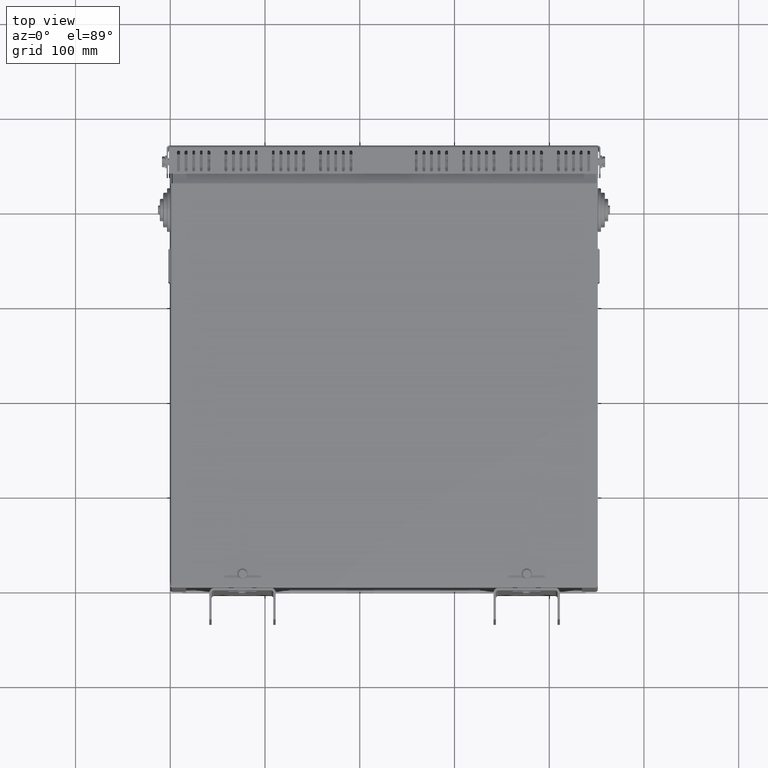
[diagram: clean part render]
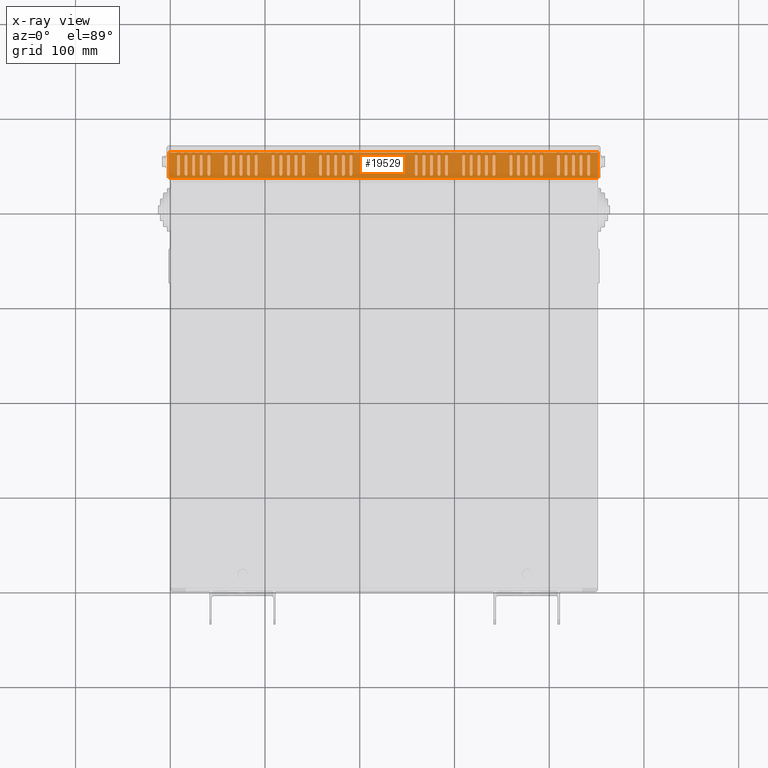
[diagram: x-ray — body ghosted, one internal face saturated and labeled with its STEP entity id]
A machine part, top view, then the same camera in x-ray: the body is ghosted and one INTERNAL B-rep face — a face not visible from any outside direction — is saturated and labeled: STEP entity #19529.
In plain terms, the highlighted planar face has unit normal (0, -0, -1).
Its self-contained STEP definition (entity closure, byte-faithful):
#1108=PLANE('',#21120);
#1771=LINE('',#28733,#3489);
#1780=LINE('',#28762,#3498);
#1787=LINE('',#28781,#3505);
#1796=LINE('',#28810,#3514);
#1806=LINE('',#28843,#3524);
#1813=LINE('',#28863,#3531);
#1819=LINE('',#28877,#3537);
#1828=LINE('',#28906,#3546);
#1835=LINE('',#28925,#3553);
#1844=LINE('',#28954,#3562);
#1851=LINE('',#28973,#3569);
#1860=LINE('',#29002,#3578);
#1867=LINE('',#29021,#3585);
#1876=LINE('',#29050,#3594);
#1883=LINE('',#29069,#3601);
#1892=LINE('',#29098,#3610);
#1899=LINE('',#29117,#3617);
#1908=LINE('',#29146,#3626);
#1915=LINE('',#29165,#3633);
#1924=LINE('',#29194,#3642);
#1931=LINE('',#29213,#3649);
#1940=LINE('',#29242,#3658);
#1947=LINE('',#29261,#3665);
#1956=LINE('',#29290,#3674);
#1963=LINE('',#29309,#3681);
#1972=LINE('',#29338,#3690);
#1979=LINE('',#29357,#3697);
#1988=LINE('',#29386,#3706);
#1995=LINE('',#29405,#3713);
#2004=LINE('',#29434,#3722);
#2011=LINE('',#29453,#3729);
#2020=LINE('',#29482,#3738);
#2027=LINE('',#29501,#3745);
#2036=LINE('',#29530,#3754);
#2043=LINE('',#29549,#3761);
#2052=LINE('',#29578,#3770);
#2062=LINE('',#29611,#3780);
#2069=LINE('',#29631,#3787);
#2078=LINE('',#29659,#3796);
#2085=LINE('',#29679,#3803);
#2091=LINE('',#29693,#3809);
#2100=LINE('',#29722,#3818);
#2107=LINE('',#29741,#3825);
#2116=LINE('',#29770,#3834);
#2123=LINE('',#29789,#3841);
#2132=LINE('',#29818,#3850);
#2142=LINE('',#29851,#3860);
#2149=LINE('',#29871,#3867);
#2158=LINE('',#29899,#3876);
#2165=LINE('',#29919,#3883);
#2174=LINE('',#29947,#3892);
#2181=LINE('',#29967,#3899);
#2187=LINE('',#29981,#3905);
#2196=LINE('',#30010,#3914);
#2203=LINE('',#30029,#3921);
#2212=LINE('',#30058,#3930);
#2219=LINE('',#30077,#3937);
#2228=LINE('',#30106,#3946);
#2235=LINE('',#30125,#3953);
#2244=LINE('',#30154,#3962);
#2251=LINE('',#30173,#3969);
#2260=LINE('',#30202,#3978);
#2267=LINE('',#30221,#3985);
#2276=LINE('',#30250,#3994);
#2283=LINE('',#30269,#4001);
#2292=LINE('',#30298,#4010);
#2299=LINE('',#30317,#4017);
#2308=LINE('',#30346,#4026);
#2315=LINE('',#30365,#4033);
#2324=LINE('',#30394,#4042);
#2331=LINE('',#30413,#4049);
#2340=LINE('',#30442,#4058);
#2350=LINE('',#30475,#4068);
#2357=LINE('',#30495,#4075);
#2366=LINE('',#30523,#4084);
#2373=LINE('',#30543,#4091);
#2379=LINE('',#30557,#4097);
#2388=LINE('',#30586,#4106);
#2395=LINE('',#30605,#4113);
#2404=LINE('',#30634,#4122);
#2463=LINE('',#30811,#4181);
#2464=LINE('',#30813,#4182);
#2465=LINE('',#30815,#4183);
#2466=LINE('',#30817,#4184);
#2467=LINE('',#30819,#4185);
#2468=LINE('',#30820,#4186);
#3489=VECTOR('',#22928,10.);
#3498=VECTOR('',#22959,10.);
#3505=VECTOR('',#22976,10.);
#3514=VECTOR('',#23007,10.);
#3524=VECTOR('',#23039,10.);
#3531=VECTOR('',#23062,10.);
#3537=VECTOR('',#23072,10.);
#3546=VECTOR('',#23103,10.);
#3553=VECTOR('',#23120,10.);
#3562=VECTOR('',#23151,10.);
#3569=VECTOR('',#23168,10.);
#3578=VECTOR('',#23199,10.);
#3585=VECTOR('',#23216,10.);
#3594=VECTOR('',#23247,10.);
#3601=VECTOR('',#23264,10.);
#3610=VECTOR('',#23295,10.);
#3617=VECTOR('',#23312,10.);
#3626=VECTOR('',#23343,10.);
#3633=VECTOR('',#23360,10.);
#3642=VECTOR('',#23391,10.);
#3649=VECTOR('',#23408,10.);
#3658=VECTOR('',#23439,10.);
#3665=VECTOR('',#23456,10.);
#3674=VECTOR('',#23487,10.);
#3681=VECTOR('',#23504,10.);
#3690=VECTOR('',#23535,10.);
#3697=VECTOR('',#23552,10.);
#3706=VECTOR('',#23583,10.);
#3713=VECTOR('',#23600,10.);
#3722=VECTOR('',#23631,10.);
#3729=VECTOR('',#23648,10.);
#3738=VECTOR('',#23679,10.);
#3745=VECTOR('',#23696,10.);
#3754=VECTOR('',#23727,10.);
#3761=VECTOR('',#23744,10.);
#3770=VECTOR('',#23775,10.);
#3780=VECTOR('',#23807,10.);
#3787=VECTOR('',#23830,10.);
#3796=VECTOR('',#23855,10.);
#3803=VECTOR('',#23878,10.);
#3809=VECTOR('',#23888,10.);
#3818=VECTOR('',#23919,10.);
#3825=VECTOR('',#23936,10.);
#3834=VECTOR('',#23967,10.);
#3841=VECTOR('',#23984,10.);
#3850=VECTOR('',#24015,10.);
#3860=VECTOR('',#24047,10.);
#3867=VECTOR('',#24070,10.);
#3876=VECTOR('',#24095,10.);
#3883=VECTOR('',#24118,10.);
#3892=VECTOR('',#24143,10.);
#3899=VECTOR('',#24166,10.);
#3905=VECTOR('',#24176,10.);
#3914=VECTOR('',#24207,10.);
#3921=VECTOR('',#24224,10.);
#3930=VECTOR('',#24255,10.);
#3937=VECTOR('',#24272,10.);
#3946=VECTOR('',#24303,10.);
#3953=VECTOR('',#24320,10.);
#3962=VECTOR('',#24351,10.);
#3969=VECTOR('',#24368,10.);
#3978=VECTOR('',#24399,10.);
#3985=VECTOR('',#24416,10.);
#3994=VECTOR('',#24447,10.);
#4001=VECTOR('',#24464,10.);
#4010=VECTOR('',#24495,10.);
#4017=VECTOR('',#24512,10.);
#4026=VECTOR('',#24543,10.);
#4033=VECTOR('',#24560,10.);
#4042=VECTOR('',#24591,10.);
#4049=VECTOR('',#24608,10.);
#4058=VECTOR('',#24639,10.);
#4068=VECTOR('',#24671,10.);
#4075=VECTOR('',#24694,10.);
#4084=VECTOR('',#24719,10.);
#4091=VECTOR('',#24742,10.);
#4097=VECTOR('',#24752,10.);
#4106=VECTOR('',#24783,10.);
#4113=VECTOR('',#24800,10.);
#4122=VECTOR('',#24831,10.);
#4181=VECTOR('',#25010,10.);
#4182=VECTOR('',#25011,10.);
#4183=VECTOR('',#25012,10.);
#4184=VECTOR('',#25013,10.);
#4185=VECTOR('',#25014,10.);
#4186=VECTOR('',#25015,10.);
#4963=FACE_BOUND('',#7060,.T.);
#4964=FACE_BOUND('',#7061,.T.);
#4965=FACE_BOUND('',#7062,.T.);
#4966=FACE_BOUND('',#7063,.T.);
#4967=FACE_BOUND('',#7064,.T.);
#4968=FACE_BOUND('',#7065,.T.);
#4969=FACE_BOUND('',#7066,.T.);
#4970=FACE_BOUND('',#7067,.T.);
#4971=FACE_BOUND('',#7068,.T.);
#4972=FACE_BOUND('',#7069,.T.);
#4973=FACE_BOUND('',#7070,.T.);
#4974=FACE_BOUND('',#7071,.T.);
#4975=FACE_BOUND('',#7072,.T.);
#4976=FACE_BOUND('',#7073,.T.);
#4977=FACE_BOUND('',#7074,.T.);
#4978=FACE_BOUND('',#7075,.T.);
#4979=FACE_BOUND('',#7076,.T.);
#4980=FACE_BOUND('',#7077,.T.);
#4981=FACE_BOUND('',#7078,.T.);
#4982=FACE_BOUND('',#7079,.T.);
#4983=FACE_BOUND('',#7080,.T.);
#4984=FACE_BOUND('',#7081,.T.);
#4985=FACE_BOUND('',#7082,.T.);
#4986=FACE_BOUND('',#7083,.T.);
#4987=FACE_BOUND('',#7084,.T.);
#4988=FACE_BOUND('',#7085,.T.);
#4989=FACE_BOUND('',#7086,.T.);
#4990=FACE_BOUND('',#7087,.T.);
#4991=FACE_BOUND('',#7088,.T.);
#4992=FACE_BOUND('',#7089,.T.);
#4993=FACE_BOUND('',#7090,.T.);
#4994=FACE_BOUND('',#7091,.T.);
#4995=FACE_BOUND('',#7092,.T.);
#4996=FACE_BOUND('',#7093,.T.);
#4997=FACE_BOUND('',#7094,.T.);
#4998=FACE_BOUND('',#7095,.T.);
#4999=FACE_BOUND('',#7096,.T.);
#5000=FACE_BOUND('',#7097,.T.);
#5001=FACE_BOUND('',#7098,.T.);
#5002=FACE_BOUND('',#7099,.T.);
#5881=FACE_OUTER_BOUND('',#7059,.T.);
#7059=EDGE_LOOP('',(#15493,#15494,#15495,#15496,#15497,#15498));
#7060=EDGE_LOOP('',(#15499,#15500,#15501,#15502));
#7061=EDGE_LOOP('',(#15503,#15504,#15505,#15506));
#7062=EDGE_LOOP('',(#15507,#15508,#15509,#15510));
#7063=EDGE_LOOP('',(#15511,#15512,#15513,#15514));
#7064=EDGE_LOOP('',(#15515,#15516,#15517,#15518));
#7065=EDGE_LOOP('',(#15519,#15520,#15521,#15522));
#7066=EDGE_LOOP('',(#15523,#15524,#15525,#15526));
#7067=EDGE_LOOP('',(#15527,#15528,#15529,#15530));
#7068=EDGE_LOOP('',(#15531,#15532,#15533,#15534));
#7069=EDGE_LOOP('',(#15535,#15536,#15537,#15538));
#7070=EDGE_LOOP('',(#15539,#15540,#15541,#15542));
#7071=EDGE_LOOP('',(#15543,#15544,#15545,#15546));
#7072=EDGE_LOOP('',(#15547,#15548,#15549,#15550));
#7073=EDGE_LOOP('',(#15551,#15552,#15553,#15554));
#7074=EDGE_LOOP('',(#15555,#15556,#15557,#15558));
#7075=EDGE_LOOP('',(#15559,#15560,#15561,#15562));
#7076=EDGE_LOOP('',(#15563,#15564,#15565,#15566));
#7077=EDGE_LOOP('',(#15567,#15568,#15569,#15570));
#7078=EDGE_LOOP('',(#15571,#15572,#15573,#15574));
#7079=EDGE_LOOP('',(#15575,#15576,#15577,#15578));
#7080=EDGE_LOOP('',(#15579,#15580,#15581,#15582));
#7081=EDGE_LOOP('',(#15583,#15584,#15585,#15586));
#7082=EDGE_LOOP('',(#15587,#15588,#15589,#15590));
#7083=EDGE_LOOP('',(#15591,#15592,#15593,#15594));
#7084=EDGE_LOOP('',(#15595,#15596,#15597,#15598));
#7085=EDGE_LOOP('',(#15599,#15600,#15601,#15602));
#7086=EDGE_LOOP('',(#15603,#15604,#15605,#15606));
#7087=EDGE_LOOP('',(#15607,#15608,#15609,#15610));
#7088=EDGE_LOOP('',(#15611,#15612,#15613,#15614));
#7089=EDGE_LOOP('',(#15615,#15616,#15617,#15618));
#7090=EDGE_LOOP('',(#15619,#15620,#15621,#15622));
#7091=EDGE_LOOP('',(#15623,#15624,#15625,#15626));
#7092=EDGE_LOOP('',(#15627,#15628,#15629,#15630));
#7093=EDGE_LOOP('',(#15631,#15632,#15633,#15634));
#7094=EDGE_LOOP('',(#15635,#15636,#15637,#15638));
#7095=EDGE_LOOP('',(#15639,#15640,#15641,#15642));
#7096=EDGE_LOOP('',(#15643,#15644,#15645,#15646));
#7097=EDGE_LOOP('',(#15647,#15648,#15649,#15650));
#7098=EDGE_LOOP('',(#15651,#15652,#15653,#15654));
#7099=EDGE_LOOP('',(#15655,#15656,#15657,#15658));
#8159=CIRCLE('',#20430,1.5);
#8163=CIRCLE('',#20438,1.5);
#8167=CIRCLE('',#20446,1.5);
#8171=CIRCLE('',#20454,1.5);
#8175=CIRCLE('',#20460,1.5);
#8179=CIRCLE('',#20469,1.5);
#8183=CIRCLE('',#20478,1.5);
#8187=CIRCLE('',#20486,1.5);
#8191=CIRCLE('',#20494,1.5);
#8195=CIRCLE('',#20502,1.5);
#8199=CIRCLE('',#20510,1.5);
#8203=CIRCLE('',#20518,1.5);
#8207=CIRCLE('',#20526,1.5);
#8211=CIRCLE('',#20534,1.5);
#8215=CIRCLE('',#20542,1.5);
#8219=CIRCLE('',#20550,1.5);
#8223=CIRCLE('',#20558,1.5);
#8227=CIRCLE('',#20566,1.5);
#8231=CIRCLE('',#20574,1.5);
#8235=CIRCLE('',#20582,1.5);
#8239=CIRCLE('',#20590,1.5);
#8243=CIRCLE('',#20598,1.5);
#8247=CIRCLE('',#20606,1.5);
#8251=CIRCLE('',#20614,1.5);
#8255=CIRCLE('',#20622,1.5);
#8259=CIRCLE('',#20630,1.5);
#8263=CIRCLE('',#20638,1.5);
#8267=CIRCLE('',#20646,1.5);
#8271=CIRCLE('',#20654,1.5);
#8275=CIRCLE('',#20662,1.5);
#8279=CIRCLE('',#20670,1.5);
#8283=CIRCLE('',#20678,1.5);
#8287=CIRCLE('',#20686,1.5);
#8291=CIRCLE('',#20694,1.5);
#8295=CIRCLE('',#20702,1.5);
#8299=CIRCLE('',#20710,1.5);
#8303=CIRCLE('',#20716,1.5);
#8307=CIRCLE('',#20725,1.5);
#8311=CIRCLE('',#20732,1.5);
#8315=CIRCLE('',#20741,1.5);
#8319=CIRCLE('',#20750,1.5);
#8323=CIRCLE('',#20758,1.5);
#8327=CIRCLE('',#20766,1.5);
#8331=CIRCLE('',#20774,1.5);
#8335=CIRCLE('',#20782,1.5);
#8339=CIRCLE('',#20790,1.5);
#8343=CIRCLE('',#20796,1.5);
#8347=CIRCLE('',#20805,1.5);
#8351=CIRCLE('',#20812,1.5);
#8355=CIRCLE('',#20821,1.5);
#8359=CIRCLE('',#20828,1.5);
#8363=CIRCLE('',#20837,1.5);
#8367=CIRCLE('',#20846,1.5);
#8371=CIRCLE('',#20854,1.5);
#8375=CIRCLE('',#20862,1.5);
#8379=CIRCLE('',#20870,1.5);
#8383=CIRCLE('',#20878,1.5);
#8387=CIRCLE('',#20886,1.5);
#8391=CIRCLE('',#20894,1.5);
#8395=CIRCLE('',#20902,1.5);
#8399=CIRCLE('',#20910,1.5);
#8403=CIRCLE('',#20918,1.5);
#8407=CIRCLE('',#20926,1.5);
#8411=CIRCLE('',#20934,1.5);
#8415=CIRCLE('',#20942,1.5);
#8419=CIRCLE('',#20950,1.5);
#8423=CIRCLE('',#20958,1.5);
#8427=CIRCLE('',#20966,1.5);
#8431=CIRCLE('',#20974,1.5);
#8435=CIRCLE('',#20982,1.5);
#8439=CIRCLE('',#20990,1.5);
#8443=CIRCLE('',#20998,1.5);
#8447=CIRCLE('',#21004,1.5);
#8451=CIRCLE('',#21013,1.5);
#8455=CIRCLE('',#21020,1.5);
#8459=CIRCLE('',#21029,1.5);
#8463=CIRCLE('',#21038,1.5);
#8467=CIRCLE('',#21046,1.5);
#8471=CIRCLE('',#21054,1.5);
#8475=CIRCLE('',#21062,1.5);
#9153=VERTEX_POINT('',#28731);
#9154=VERTEX_POINT('',#28732);
#9159=VERTEX_POINT('',#28746);
#9163=VERTEX_POINT('',#28761);
#9169=VERTEX_POINT('',#28779);
#9170=VERTEX_POINT('',#28780);
#9175=VERTEX_POINT('',#28794);
#9179=VERTEX_POINT('',#28809);
#9185=VERTEX_POINT('',#28827);
#9186=VERTEX_POINT('',#28828);
#9191=VERTEX_POINT('',#28842);
#9195=VERTEX_POINT('',#28857);
#9201=VERTEX_POINT('',#28875);
#9202=VERTEX_POINT('',#28876);
#9207=VERTEX_POINT('',#28890);
#9211=VERTEX_POINT('',#28905);
#9217=VERTEX_POINT('',#28923);
#9218=VERTEX_POINT('',#28924);
#9223=VERTEX_POINT('',#28938);
#9227=VERTEX_POINT('',#28953);
#9233=VERTEX_POINT('',#28971);
#9234=VERTEX_POINT('',#28972);
#9239=VERTEX_POINT('',#28986);
#9243=VERTEX_POINT('',#29001);
#9249=VERTEX_POINT('',#29019);
#9250=VERTEX_POINT('',#29020);
#9255=VERTEX_POINT('',#29034);
#9259=VERTEX_POINT('',#29049);
#9265=VERTEX_POINT('',#29067);
#9266=VERTEX_POINT('',#29068);
#9271=VERTEX_POINT('',#29082);
#9275=VERTEX_POINT('',#29097);
#9281=VERTEX_POINT('',#29115);
#9282=VERTEX_POINT('',#29116);
#9287=VERTEX_POINT('',#29130);
#9291=VERTEX_POINT('',#29145);
#9297=VERTEX_POINT('',#29163);
#9298=VERTEX_POINT('',#29164);
#9303=VERTEX_POINT('',#29178);
#9307=VERTEX_POINT('',#29193);
#9313=VERTEX_POINT('',#29211);
#9314=VERTEX_POINT('',#29212);
#9319=VERTEX_POINT('',#29226);
#9323=VERTEX_POINT('',#29241);
#9329=VERTEX_POINT('',#29259);
#9330=VERTEX_POINT('',#29260);
#9335=VERTEX_POINT('',#29274);
#9339=VERTEX_POINT('',#29289);
#9345=VERTEX_POINT('',#29307);
#9346=VERTEX_POINT('',#29308);
#9351=VERTEX_POINT('',#29322);
#9355=VERTEX_POINT('',#29337);
#9361=VERTEX_POINT('',#29355);
#9362=VERTEX_POINT('',#29356);
#9367=VERTEX_POINT('',#29370);
#9371=VERTEX_POINT('',#29385);
#9377=VERTEX_POINT('',#29403);
#9378=VERTEX_POINT('',#29404);
#9383=VERTEX_POINT('',#29418);
#9387=VERTEX_POINT('',#29433);
#9393=VERTEX_POINT('',#29451);
#9394=VERTEX_POINT('',#29452);
#9399=VERTEX_POINT('',#29466);
#9403=VERTEX_POINT('',#29481);
#9409=VERTEX_POINT('',#29499);
#9410=VERTEX_POINT('',#29500);
#9415=VERTEX_POINT('',#29514);
#9419=VERTEX_POINT('',#29529);
#9425=VERTEX_POINT('',#29547);
#9426=VERTEX_POINT('',#29548);
#9431=VERTEX_POINT('',#29562);
#9435=VERTEX_POINT('',#29577);
#9441=VERTEX_POINT('',#29595);
#9442=VERTEX_POINT('',#29596);
#9447=VERTEX_POINT('',#29610);
#9451=VERTEX_POINT('',#29625);
#9457=VERTEX_POINT('',#29643);
#9458=VERTEX_POINT('',#29644);
#9463=VERTEX_POINT('',#29658);
#9467=VERTEX_POINT('',#29673);
#9473=VERTEX_POINT('',#29691);
#9474=VERTEX_POINT('',#29692);
#9479=VERTEX_POINT('',#29706);
#9483=VERTEX_POINT('',#29721);
#9489=VERTEX_POINT('',#29739);
#9490=VERTEX_POINT('',#29740);
#9495=VERTEX_POINT('',#29754);
#9499=VERTEX_POINT('',#29769);
#9505=VERTEX_POINT('',#29787);
#9506=VERTEX_POINT('',#29788);
#9511=VERTEX_POINT('',#29802);
#9515=VERTEX_POINT('',#29817);
#9521=VERTEX_POINT('',#29835);
#9522=VERTEX_POINT('',#29836);
#9527=VERTEX_POINT('',#29850);
#9531=VERTEX_POINT('',#29865);
#9537=VERTEX_POINT('',#29883);
#9538=VERTEX_POINT('',#29884);
#9543=VERTEX_POINT('',#29898);
#9547=VERTEX_POINT('',#29913);
#9553=VERTEX_POINT('',#29931);
#9554=VERTEX_POINT('',#29932);
#9559=VERTEX_POINT('',#29946);
#9563=VERTEX_POINT('',#29961);
#9569=VERTEX_POINT('',#29979);
#9570=VERTEX_POINT('',#29980);
#9575=VERTEX_POINT('',#29994);
#9579=VERTEX_POINT('',#30009);
#9585=VERTEX_POINT('',#30027);
#9586=VERTEX_POINT('',#30028);
#9591=VERTEX_POINT('',#30042);
#9595=VERTEX_POINT('',#30057);
#9601=VERTEX_POINT('',#30075);
#9602=VERTEX_POINT('',#30076);
#9607=VERTEX_POINT('',#30090);
#9611=VERTEX_POINT('',#30105);
#9617=VERTEX_POINT('',#30123);
#9618=VERTEX_POINT('',#30124);
#9623=VERTEX_POINT('',#30138);
#9627=VERTEX_POINT('',#30153);
#9633=VERTEX_POINT('',#30171);
#9634=VERTEX_POINT('',#30172);
#9639=VERTEX_POINT('',#30186);
#9643=VERTEX_POINT('',#30201);
#9649=VERTEX_POINT('',#30219);
#9650=VERTEX_POINT('',#30220);
#9655=VERTEX_POINT('',#30234);
#9659=VERTEX_POINT('',#30249);
#9665=VERTEX_POINT('',#30267);
#9666=VERTEX_POINT('',#30268);
#9671=VERTEX_POINT('',#30282);
#9675=VERTEX_POINT('',#30297);
#9681=VERTEX_POINT('',#30315);
#9682=VERTEX_POINT('',#30316);
#9687=VERTEX_POINT('',#30330);
#9691=VERTEX_POINT('',#30345);
#9697=VERTEX_POINT('',#30363);
#9698=VERTEX_POINT('',#30364);
#9703=VERTEX_POINT('',#30378);
#9707=VERTEX_POINT('',#30393);
#9713=VERTEX_POINT('',#30411);
#9714=VERTEX_POINT('',#30412);
#9719=VERTEX_POINT('',#30426);
#9723=VERTEX_POINT('',#30441);
#9729=VERTEX_POINT('',#30459);
#9730=VERTEX_POINT('',#30460);
#9735=VERTEX_POINT('',#30474);
#9739=VERTEX_POINT('',#30489);
#9745=VERTEX_POINT('',#30507);
#9746=VERTEX_POINT('',#30508);
#9751=VERTEX_POINT('',#30522);
#9755=VERTEX_POINT('',#30537);
#9761=VERTEX_POINT('',#30555);
#9762=VERTEX_POINT('',#30556);
#9767=VERTEX_POINT('',#30570);
#9771=VERTEX_POINT('',#30585);
#9777=VERTEX_POINT('',#30603);
#9778=VERTEX_POINT('',#30604);
#9783=VERTEX_POINT('',#30618);
#9787=VERTEX_POINT('',#30633);
#9844=VERTEX_POINT('',#30809);
#9845=VERTEX_POINT('',#30810);
#9846=VERTEX_POINT('',#30812);
#9847=VERTEX_POINT('',#30814);
#9848=VERTEX_POINT('',#30816);
#9849=VERTEX_POINT('',#30818);
#11071=EDGE_CURVE('',#9153,#9154,#1771,.T.);
#11078=EDGE_CURVE('',#9154,#9159,#8159,.T.);
#11086=EDGE_CURVE('',#9159,#9163,#1780,.T.);
#11089=EDGE_CURVE('',#9163,#9153,#8163,.T.);
#11095=EDGE_CURVE('',#9169,#9170,#1787,.T.);
#11102=EDGE_CURVE('',#9170,#9175,#8167,.T.);
#11110=EDGE_CURVE('',#9175,#9179,#1796,.T.);
#11113=EDGE_CURVE('',#9179,#9169,#8171,.T.);
#11119=EDGE_CURVE('',#9185,#9186,#8175,.T.);
#11126=EDGE_CURVE('',#9186,#9191,#1806,.T.);
#11134=EDGE_CURVE('',#9191,#9195,#8179,.T.);
#11137=EDGE_CURVE('',#9195,#9185,#1813,.T.);
#11143=EDGE_CURVE('',#9201,#9202,#1819,.T.);
#11150=EDGE_CURVE('',#9202,#9207,#8183,.T.);
#11158=EDGE_CURVE('',#9207,#9211,#1828,.T.);
#11161=EDGE_CURVE('',#9211,#9201,#8187,.T.);
#11167=EDGE_CURVE('',#9217,#9218,#1835,.T.);
#11174=EDGE_CURVE('',#9218,#9223,#8191,.T.);
#11182=EDGE_CURVE('',#9223,#9227,#1844,.T.);
#11185=EDGE_CURVE('',#9227,#9217,#8195,.T.);
#11191=EDGE_CURVE('',#9233,#9234,#1851,.T.);
#11198=EDGE_CURVE('',#9234,#9239,#8199,.T.);
#11206=EDGE_CURVE('',#9239,#9243,#1860,.T.);
#11209=EDGE_CURVE('',#9243,#9233,#8203,.T.);
#11215=EDGE_CURVE('',#9249,#9250,#1867,.T.);
#11222=EDGE_CURVE('',#9250,#9255,#8207,.T.);
#11230=EDGE_CURVE('',#9255,#9259,#1876,.T.);
#11233=EDGE_CURVE('',#9259,#9249,#8211,.T.);
#11239=EDGE_CURVE('',#9265,#9266,#1883,.T.);
#11246=EDGE_CURVE('',#9266,#9271,#8215,.T.);
#11254=EDGE_CURVE('',#9271,#9275,#1892,.T.);
#11257=EDGE_CURVE('',#9275,#9265,#8219,.T.);
#11263=EDGE_CURVE('',#9281,#9282,#1899,.T.);
#11270=EDGE_CURVE('',#9282,#9287,#8223,.T.);
#11278=EDGE_CURVE('',#9287,#9291,#1908,.T.);
#11281=EDGE_CURVE('',#9291,#9281,#8227,.T.);
#11287=EDGE_CURVE('',#9297,#9298,#1915,.T.);
#11294=EDGE_CURVE('',#9298,#9303,#8231,.T.);
#11302=EDGE_CURVE('',#9303,#9307,#1924,.T.);
#11305=EDGE_CURVE('',#9307,#9297,#8235,.T.);
#11311=EDGE_CURVE('',#9313,#9314,#1931,.T.);
#11318=EDGE_CURVE('',#9314,#9319,#8239,.T.);
#11326=EDGE_CURVE('',#9319,#9323,#1940,.T.);
#11329=EDGE_CURVE('',#9323,#9313,#8243,.T.);
#11335=EDGE_CURVE('',#9329,#9330,#1947,.T.);
#11342=EDGE_CURVE('',#9330,#9335,#8247,.T.);
#11350=EDGE_CURVE('',#9335,#9339,#1956,.T.);
#11353=EDGE_CURVE('',#9339,#9329,#8251,.T.);
#11359=EDGE_CURVE('',#9345,#9346,#1963,.T.);
#11366=EDGE_CURVE('',#9346,#9351,#8255,.T.);
#11374=EDGE_CURVE('',#9351,#9355,#1972,.T.);
#11377=EDGE_CURVE('',#9355,#9345,#8259,.T.);
#11383=EDGE_CURVE('',#9361,#9362,#1979,.T.);
#11390=EDGE_CURVE('',#9362,#9367,#8263,.T.);
#11398=EDGE_CURVE('',#9367,#9371,#1988,.T.);
#11401=EDGE_CURVE('',#9371,#9361,#8267,.T.);
#11407=EDGE_CURVE('',#9377,#9378,#1995,.T.);
#11414=EDGE_CURVE('',#9378,#9383,#8271,.T.);
#11422=EDGE_CURVE('',#9383,#9387,#2004,.T.);
#11425=EDGE_CURVE('',#9387,#9377,#8275,.T.);
#11431=EDGE_CURVE('',#9393,#9394,#2011,.T.);
#11438=EDGE_CURVE('',#9394,#9399,#8279,.T.);
#11446=EDGE_CURVE('',#9399,#9403,#2020,.T.);
#11449=EDGE_CURVE('',#9403,#9393,#8283,.T.);
#11455=EDGE_CURVE('',#9409,#9410,#2027,.T.);
#11462=EDGE_CURVE('',#9410,#9415,#8287,.T.);
#11470=EDGE_CURVE('',#9415,#9419,#2036,.T.);
#11473=EDGE_CURVE('',#9419,#9409,#8291,.T.);
#11479=EDGE_CURVE('',#9425,#9426,#2043,.T.);
#11486=EDGE_CURVE('',#9426,#9431,#8295,.T.);
#11494=EDGE_CURVE('',#9431,#9435,#2052,.T.);
#11497=EDGE_CURVE('',#9435,#9425,#8299,.T.);
#11503=EDGE_CURVE('',#9441,#9442,#8303,.T.);
#11510=EDGE_CURVE('',#9442,#9447,#2062,.T.);
#11518=EDGE_CURVE('',#9447,#9451,#8307,.T.);
#11521=EDGE_CURVE('',#9451,#9441,#2069,.T.);
#11527=EDGE_CURVE('',#9457,#9458,#8311,.T.);
#11534=EDGE_CURVE('',#9458,#9463,#2078,.T.);
#11542=EDGE_CURVE('',#9463,#9467,#8315,.T.);
#11545=EDGE_CURVE('',#9467,#9457,#2085,.T.);
#11551=EDGE_CURVE('',#9473,#9474,#2091,.T.);
#11558=EDGE_CURVE('',#9474,#9479,#8319,.T.);
#11566=EDGE_CURVE('',#9479,#9483,#2100,.T.);
#11569=EDGE_CURVE('',#9483,#9473,#8323,.T.);
#11575=EDGE_CURVE('',#9489,#9490,#2107,.T.);
#11582=EDGE_CURVE('',#9490,#9495,#8327,.T.);
#11590=EDGE_CURVE('',#9495,#9499,#2116,.T.);
#11593=EDGE_CURVE('',#9499,#9489,#8331,.T.);
#11599=EDGE_CURVE('',#9505,#9506,#2123,.T.);
#11606=EDGE_CURVE('',#9506,#9511,#8335,.T.);
#11614=EDGE_CURVE('',#9511,#9515,#2132,.T.);
#11617=EDGE_CURVE('',#9515,#9505,#8339,.T.);
#11623=EDGE_CURVE('',#9521,#9522,#8343,.T.);
#11630=EDGE_CURVE('',#9522,#9527,#2142,.T.);
#11638=EDGE_CURVE('',#9527,#9531,#8347,.T.);
#11641=EDGE_CURVE('',#9531,#9521,#2149,.T.);
#11647=EDGE_CURVE('',#9537,#9538,#8351,.T.);
#11654=EDGE_CURVE('',#9538,#9543,#2158,.T.);
#11662=EDGE_CURVE('',#9543,#9547,#8355,.T.);
#11665=EDGE_CURVE('',#9547,#9537,#2165,.T.);
#11671=EDGE_CURVE('',#9553,#9554,#8359,.T.);
#11678=EDGE_CURVE('',#9554,#9559,#2174,.T.);
#11686=EDGE_CURVE('',#9559,#9563,#8363,.T.);
#11689=EDGE_CURVE('',#9563,#9553,#2181,.T.);
#11695=EDGE_CURVE('',#9569,#9570,#2187,.T.);
#11702=EDGE_CURVE('',#9570,#9575,#8367,.T.);
#11710=EDGE_CURVE('',#9575,#9579,#2196,.T.);
#11713=EDGE_CURVE('',#9579,#9569,#8371,.T.);
#11719=EDGE_CURVE('',#9585,#9586,#2203,.T.);
#11726=EDGE_CURVE('',#9586,#9591,#8375,.T.);
#11734=EDGE_CURVE('',#9591,#9595,#2212,.T.);
#11737=EDGE_CURVE('',#9595,#9585,#8379,.T.);
#11743=EDGE_CURVE('',#9601,#9602,#2219,.T.);
#11750=EDGE_CURVE('',#9602,#9607,#8383,.T.);
#11758=EDGE_CURVE('',#9607,#9611,#2228,.T.);
#11761=EDGE_CURVE('',#9611,#9601,#8387,.T.);
#11767=EDGE_CURVE('',#9617,#9618,#2235,.T.);
#11774=EDGE_CURVE('',#9618,#9623,#8391,.T.);
#11782=EDGE_CURVE('',#9623,#9627,#2244,.T.);
#11785=EDGE_CURVE('',#9627,#9617,#8395,.T.);
#11791=EDGE_CURVE('',#9633,#9634,#2251,.T.);
#11798=EDGE_CURVE('',#9634,#9639,#8399,.T.);
#11806=EDGE_CURVE('',#9639,#9643,#2260,.T.);
#11809=EDGE_CURVE('',#9643,#9633,#8403,.T.);
#11815=EDGE_CURVE('',#9649,#9650,#2267,.T.);
#11822=EDGE_CURVE('',#9650,#9655,#8407,.T.);
#11830=EDGE_CURVE('',#9655,#9659,#2276,.T.);
#11833=EDGE_CURVE('',#9659,#9649,#8411,.T.);
#11839=EDGE_CURVE('',#9665,#9666,#2283,.T.);
#11846=EDGE_CURVE('',#9666,#9671,#8415,.T.);
#11854=EDGE_CURVE('',#9671,#9675,#2292,.T.);
#11857=EDGE_CURVE('',#9675,#9665,#8419,.T.);
#11863=EDGE_CURVE('',#9681,#9682,#2299,.T.);
#11870=EDGE_CURVE('',#9682,#9687,#8423,.T.);
#11878=EDGE_CURVE('',#9687,#9691,#2308,.T.);
#11881=EDGE_CURVE('',#9691,#9681,#8427,.T.);
#11887=EDGE_CURVE('',#9697,#9698,#2315,.T.);
#11894=EDGE_CURVE('',#9698,#9703,#8431,.T.);
#11902=EDGE_CURVE('',#9703,#9707,#2324,.T.);
#11905=EDGE_CURVE('',#9707,#9697,#8435,.T.);
#11911=EDGE_CURVE('',#9713,#9714,#2331,.T.);
#11918=EDGE_CURVE('',#9714,#9719,#8439,.T.);
#11926=EDGE_CURVE('',#9719,#9723,#2340,.T.);
#11929=EDGE_CURVE('',#9723,#9713,#8443,.T.);
#11935=EDGE_CURVE('',#9729,#9730,#8447,.T.);
#11942=EDGE_CURVE('',#9730,#9735,#2350,.T.);
#11950=EDGE_CURVE('',#9735,#9739,#8451,.T.);
#11953=EDGE_CURVE('',#9739,#9729,#2357,.T.);
#11959=EDGE_CURVE('',#9745,#9746,#8455,.T.);
#11966=EDGE_CURVE('',#9746,#9751,#2366,.T.);
#11974=EDGE_CURVE('',#9751,#9755,#8459,.T.);
#11977=EDGE_CURVE('',#9755,#9745,#2373,.T.);
#11983=EDGE_CURVE('',#9761,#9762,#2379,.T.);
#11990=EDGE_CURVE('',#9762,#9767,#8463,.T.);
#11998=EDGE_CURVE('',#9767,#9771,#2388,.T.);
#12001=EDGE_CURVE('',#9771,#9761,#8467,.T.);
#12007=EDGE_CURVE('',#9777,#9778,#2395,.T.);
#12014=EDGE_CURVE('',#9778,#9783,#8471,.T.);
#12022=EDGE_CURVE('',#9783,#9787,#2404,.T.);
#12025=EDGE_CURVE('',#9787,#9777,#8475,.T.);
#12109=EDGE_CURVE('',#9844,#9845,#2463,.T.);
#12110=EDGE_CURVE('',#9845,#9846,#2464,.T.);
#12111=EDGE_CURVE('',#9846,#9847,#2465,.T.);
#12112=EDGE_CURVE('',#9847,#9848,#2466,.T.);
#12113=EDGE_CURVE('',#9849,#9848,#2467,.T.);
#12114=EDGE_CURVE('',#9844,#9849,#2468,.T.);
#15493=ORIENTED_EDGE('',*,*,#12109,.T.);
#15494=ORIENTED_EDGE('',*,*,#12110,.T.);
#15495=ORIENTED_EDGE('',*,*,#12111,.T.);
#15496=ORIENTED_EDGE('',*,*,#12112,.T.);
#15497=ORIENTED_EDGE('',*,*,#12113,.F.);
#15498=ORIENTED_EDGE('',*,*,#12114,.F.);
#15499=ORIENTED_EDGE('',*,*,#11086,.T.);
#15500=ORIENTED_EDGE('',*,*,#11089,.T.);
#15501=ORIENTED_EDGE('',*,*,#11071,.T.);
#15502=ORIENTED_EDGE('',*,*,#11078,.T.);
#15503=ORIENTED_EDGE('',*,*,#11110,.T.);
#15504=ORIENTED_EDGE('',*,*,#11113,.T.);
#15505=ORIENTED_EDGE('',*,*,#11095,.T.);
#15506=ORIENTED_EDGE('',*,*,#11102,.T.);
#15507=ORIENTED_EDGE('',*,*,#11134,.T.);
#15508=ORIENTED_EDGE('',*,*,#11137,.T.);
#15509=ORIENTED_EDGE('',*,*,#11119,.T.);
#15510=ORIENTED_EDGE('',*,*,#11126,.T.);
#15511=ORIENTED_EDGE('',*,*,#11158,.T.);
#15512=ORIENTED_EDGE('',*,*,#11161,.T.);
#15513=ORIENTED_EDGE('',*,*,#11143,.T.);
#15514=ORIENTED_EDGE('',*,*,#11150,.T.);
#15515=ORIENTED_EDGE('',*,*,#11182,.T.);
#15516=ORIENTED_EDGE('',*,*,#11185,.T.);
#15517=ORIENTED_EDGE('',*,*,#11167,.T.);
#15518=ORIENTED_EDGE('',*,*,#11174,.T.);
#15519=ORIENTED_EDGE('',*,*,#11206,.T.);
#15520=ORIENTED_EDGE('',*,*,#11209,.T.);
#15521=ORIENTED_EDGE('',*,*,#11191,.T.);
#15522=ORIENTED_EDGE('',*,*,#11198,.T.);
#15523=ORIENTED_EDGE('',*,*,#11230,.T.);
#15524=ORIENTED_EDGE('',*,*,#11233,.T.);
#15525=ORIENTED_EDGE('',*,*,#11215,.T.);
#15526=ORIENTED_EDGE('',*,*,#11222,.T.);
#15527=ORIENTED_EDGE('',*,*,#11254,.T.);
#15528=ORIENTED_EDGE('',*,*,#11257,.T.);
#15529=ORIENTED_EDGE('',*,*,#11239,.T.);
#15530=ORIENTED_EDGE('',*,*,#11246,.T.);
#15531=ORIENTED_EDGE('',*,*,#11278,.T.);
#15532=ORIENTED_EDGE('',*,*,#11281,.T.);
#15533=ORIENTED_EDGE('',*,*,#11263,.T.);
#15534=ORIENTED_EDGE('',*,*,#11270,.T.);
#15535=ORIENTED_EDGE('',*,*,#11302,.T.);
#15536=ORIENTED_EDGE('',*,*,#11305,.T.);
#15537=ORIENTED_EDGE('',*,*,#11287,.T.);
#15538=ORIENTED_EDGE('',*,*,#11294,.T.);
#15539=ORIENTED_EDGE('',*,*,#11326,.T.);
#15540=ORIENTED_EDGE('',*,*,#11329,.T.);
#15541=ORIENTED_EDGE('',*,*,#11311,.T.);
#15542=ORIENTED_EDGE('',*,*,#11318,.T.);
#15543=ORIENTED_EDGE('',*,*,#11350,.T.);
#15544=ORIENTED_EDGE('',*,*,#11353,.T.);
#15545=ORIENTED_EDGE('',*,*,#11335,.T.);
#15546=ORIENTED_EDGE('',*,*,#11342,.T.);
#15547=ORIENTED_EDGE('',*,*,#11374,.T.);
#15548=ORIENTED_EDGE('',*,*,#11377,.T.);
#15549=ORIENTED_EDGE('',*,*,#11359,.T.);
#15550=ORIENTED_EDGE('',*,*,#11366,.T.);
#15551=ORIENTED_EDGE('',*,*,#11398,.T.);
#15552=ORIENTED_EDGE('',*,*,#11401,.T.);
#15553=ORIENTED_EDGE('',*,*,#11383,.T.);
#15554=ORIENTED_EDGE('',*,*,#11390,.T.);
#15555=ORIENTED_EDGE('',*,*,#11422,.T.);
#15556=ORIENTED_EDGE('',*,*,#11425,.T.);
#15557=ORIENTED_EDGE('',*,*,#11407,.T.);
#15558=ORIENTED_EDGE('',*,*,#11414,.T.);
#15559=ORIENTED_EDGE('',*,*,#11446,.T.);
#15560=ORIENTED_EDGE('',*,*,#11449,.T.);
#15561=ORIENTED_EDGE('',*,*,#11431,.T.);
#15562=ORIENTED_EDGE('',*,*,#11438,.T.);
#15563=ORIENTED_EDGE('',*,*,#11470,.T.);
#15564=ORIENTED_EDGE('',*,*,#11473,.T.);
#15565=ORIENTED_EDGE('',*,*,#11455,.T.);
#15566=ORIENTED_EDGE('',*,*,#11462,.T.);
#15567=ORIENTED_EDGE('',*,*,#11494,.T.);
#15568=ORIENTED_EDGE('',*,*,#11497,.T.);
#15569=ORIENTED_EDGE('',*,*,#11479,.T.);
#15570=ORIENTED_EDGE('',*,*,#11486,.T.);
#15571=ORIENTED_EDGE('',*,*,#11518,.T.);
#15572=ORIENTED_EDGE('',*,*,#11521,.T.);
#15573=ORIENTED_EDGE('',*,*,#11503,.T.);
#15574=ORIENTED_EDGE('',*,*,#11510,.T.);
#15575=ORIENTED_EDGE('',*,*,#11542,.T.);
#15576=ORIENTED_EDGE('',*,*,#11545,.T.);
#15577=ORIENTED_EDGE('',*,*,#11527,.T.);
#15578=ORIENTED_EDGE('',*,*,#11534,.T.);
#15579=ORIENTED_EDGE('',*,*,#11566,.T.);
#15580=ORIENTED_EDGE('',*,*,#11569,.T.);
#15581=ORIENTED_EDGE('',*,*,#11551,.T.);
#15582=ORIENTED_EDGE('',*,*,#11558,.T.);
#15583=ORIENTED_EDGE('',*,*,#11590,.T.);
#15584=ORIENTED_EDGE('',*,*,#11593,.T.);
#15585=ORIENTED_EDGE('',*,*,#11575,.T.);
#15586=ORIENTED_EDGE('',*,*,#11582,.T.);
#15587=ORIENTED_EDGE('',*,*,#11614,.T.);
#15588=ORIENTED_EDGE('',*,*,#11617,.T.);
#15589=ORIENTED_EDGE('',*,*,#11599,.T.);
#15590=ORIENTED_EDGE('',*,*,#11606,.T.);
#15591=ORIENTED_EDGE('',*,*,#11638,.T.);
#15592=ORIENTED_EDGE('',*,*,#11641,.T.);
#15593=ORIENTED_EDGE('',*,*,#11623,.T.);
#15594=ORIENTED_EDGE('',*,*,#11630,.T.);
#15595=ORIENTED_EDGE('',*,*,#11662,.T.);
#15596=ORIENTED_EDGE('',*,*,#11665,.T.);
#15597=ORIENTED_EDGE('',*,*,#11647,.T.);
#15598=ORIENTED_EDGE('',*,*,#11654,.T.);
#15599=ORIENTED_EDGE('',*,*,#11686,.T.);
#15600=ORIENTED_EDGE('',*,*,#11689,.T.);
#15601=ORIENTED_EDGE('',*,*,#11671,.T.);
#15602=ORIENTED_EDGE('',*,*,#11678,.T.);
#15603=ORIENTED_EDGE('',*,*,#11710,.T.);
#15604=ORIENTED_EDGE('',*,*,#11713,.T.);
#15605=ORIENTED_EDGE('',*,*,#11695,.T.);
#15606=ORIENTED_EDGE('',*,*,#11702,.T.);
#15607=ORIENTED_EDGE('',*,*,#11734,.T.);
#15608=ORIENTED_EDGE('',*,*,#11737,.T.);
#15609=ORIENTED_EDGE('',*,*,#11719,.T.);
#15610=ORIENTED_EDGE('',*,*,#11726,.T.);
#15611=ORIENTED_EDGE('',*,*,#11758,.T.);
#15612=ORIENTED_EDGE('',*,*,#11761,.T.);
#15613=ORIENTED_EDGE('',*,*,#11743,.T.);
#15614=ORIENTED_EDGE('',*,*,#11750,.T.);
#15615=ORIENTED_EDGE('',*,*,#11782,.T.);
#15616=ORIENTED_EDGE('',*,*,#11785,.T.);
#15617=ORIENTED_EDGE('',*,*,#11767,.T.);
#15618=ORIENTED_EDGE('',*,*,#11774,.T.);
#15619=ORIENTED_EDGE('',*,*,#11806,.T.);
#15620=ORIENTED_EDGE('',*,*,#11809,.T.);
#15621=ORIENTED_EDGE('',*,*,#11791,.T.);
#15622=ORIENTED_EDGE('',*,*,#11798,.T.);
#15623=ORIENTED_EDGE('',*,*,#11830,.T.);
#15624=ORIENTED_EDGE('',*,*,#11833,.T.);
#15625=ORIENTED_EDGE('',*,*,#11815,.T.);
#15626=ORIENTED_EDGE('',*,*,#11822,.T.);
#15627=ORIENTED_EDGE('',*,*,#11854,.T.);
#15628=ORIENTED_EDGE('',*,*,#11857,.T.);
#15629=ORIENTED_EDGE('',*,*,#11839,.T.);
#15630=ORIENTED_EDGE('',*,*,#11846,.T.);
#15631=ORIENTED_EDGE('',*,*,#11878,.T.);
#15632=ORIENTED_EDGE('',*,*,#11881,.T.);
#15633=ORIENTED_EDGE('',*,*,#11863,.T.);
#15634=ORIENTED_EDGE('',*,*,#11870,.T.);
#15635=ORIENTED_EDGE('',*,*,#11902,.T.);
#15636=ORIENTED_EDGE('',*,*,#11905,.T.);
#15637=ORIENTED_EDGE('',*,*,#11887,.T.);
#15638=ORIENTED_EDGE('',*,*,#11894,.T.);
#15639=ORIENTED_EDGE('',*,*,#11926,.T.);
#15640=ORIENTED_EDGE('',*,*,#11929,.T.);
#15641=ORIENTED_EDGE('',*,*,#11911,.T.);
#15642=ORIENTED_EDGE('',*,*,#11918,.T.);
#15643=ORIENTED_EDGE('',*,*,#11950,.T.);
#15644=ORIENTED_EDGE('',*,*,#11953,.T.);
#15645=ORIENTED_EDGE('',*,*,#11935,.T.);
#15646=ORIENTED_EDGE('',*,*,#11942,.T.);
#15647=ORIENTED_EDGE('',*,*,#11974,.T.);
#15648=ORIENTED_EDGE('',*,*,#11977,.T.);
#15649=ORIENTED_EDGE('',*,*,#11959,.T.);
#15650=ORIENTED_EDGE('',*,*,#11966,.T.);
#15651=ORIENTED_EDGE('',*,*,#11998,.T.);
#15652=ORIENTED_EDGE('',*,*,#12001,.T.);
#15653=ORIENTED_EDGE('',*,*,#11983,.T.);
#15654=ORIENTED_EDGE('',*,*,#11990,.T.);
#15655=ORIENTED_EDGE('',*,*,#12022,.T.);
#15656=ORIENTED_EDGE('',*,*,#12025,.T.);
#15657=ORIENTED_EDGE('',*,*,#12007,.T.);
#15658=ORIENTED_EDGE('',*,*,#12014,.T.);
#19529=ADVANCED_FACE('',(#5881,#4963,#4964,#4965,#4966,#4967,#4968,#4969,
#4970,#4971,#4972,#4973,#4974,#4975,#4976,#4977,#4978,#4979,#4980,#4981,
#4982,#4983,#4984,#4985,#4986,#4987,#4988,#4989,#4990,#4991,#4992,#4993,
#4994,#4995,#4996,#4997,#4998,#4999,#5000,#5001,#5002),#1108,.F.);
#20430=AXIS2_PLACEMENT_3D('',#28747,#22941,#22942);
#20438=AXIS2_PLACEMENT_3D('',#28767,#22964,#22965);
#20446=AXIS2_PLACEMENT_3D('',#28795,#22989,#22990);
#20454=AXIS2_PLACEMENT_3D('',#28815,#23012,#23013);
#20460=AXIS2_PLACEMENT_3D('',#28829,#23026,#23027);
#20469=AXIS2_PLACEMENT_3D('',#28858,#23055,#23056);
#20478=AXIS2_PLACEMENT_3D('',#28891,#23085,#23086);
#20486=AXIS2_PLACEMENT_3D('',#28911,#23108,#23109);
#20494=AXIS2_PLACEMENT_3D('',#28939,#23133,#23134);
#20502=AXIS2_PLACEMENT_3D('',#28959,#23156,#23157);
#20510=AXIS2_PLACEMENT_3D('',#28987,#23181,#23182);
#20518=AXIS2_PLACEMENT_3D('',#29007,#23204,#23205);
#20526=AXIS2_PLACEMENT_3D('',#29035,#23229,#23230);
#20534=AXIS2_PLACEMENT_3D('',#29055,#23252,#23253);
#20542=AXIS2_PLACEMENT_3D('',#29083,#23277,#23278);
#20550=AXIS2_PLACEMENT_3D('',#29103,#23300,#23301);
#20558=AXIS2_PLACEMENT_3D('',#29131,#23325,#23326);
#20566=AXIS2_PLACEMENT_3D('',#29151,#23348,#23349);
#20574=AXIS2_PLACEMENT_3D('',#29179,#23373,#23374);
#20582=AXIS2_PLACEMENT_3D('',#29199,#23396,#23397);
#20590=AXIS2_PLACEMENT_3D('',#29227,#23421,#23422);
#20598=AXIS2_PLACEMENT_3D('',#29247,#23444,#23445);
#20606=AXIS2_PLACEMENT_3D('',#29275,#23469,#23470);
#20614=AXIS2_PLACEMENT_3D('',#29295,#23492,#23493);
#20622=AXIS2_PLACEMENT_3D('',#29323,#23517,#23518);
#20630=AXIS2_PLACEMENT_3D('',#29343,#23540,#23541);
#20638=AXIS2_PLACEMENT_3D('',#29371,#23565,#23566);
#20646=AXIS2_PLACEMENT_3D('',#29391,#23588,#23589);
#20654=AXIS2_PLACEMENT_3D('',#29419,#23613,#23614);
#20662=AXIS2_PLACEMENT_3D('',#29439,#23636,#23637);
#20670=AXIS2_PLACEMENT_3D('',#29467,#23661,#23662);
#20678=AXIS2_PLACEMENT_3D('',#29487,#23684,#23685);
#20686=AXIS2_PLACEMENT_3D('',#29515,#23709,#23710);
#20694=AXIS2_PLACEMENT_3D('',#29535,#23732,#23733);
#20702=AXIS2_PLACEMENT_3D('',#29563,#23757,#23758);
#20710=AXIS2_PLACEMENT_3D('',#29583,#23780,#23781);
#20716=AXIS2_PLACEMENT_3D('',#29597,#23794,#23795);
#20725=AXIS2_PLACEMENT_3D('',#29626,#23823,#23824);
#20732=AXIS2_PLACEMENT_3D('',#29645,#23842,#23843);
#20741=AXIS2_PLACEMENT_3D('',#29674,#23871,#23872);
#20750=AXIS2_PLACEMENT_3D('',#29707,#23901,#23902);
#20758=AXIS2_PLACEMENT_3D('',#29727,#23924,#23925);
#20766=AXIS2_PLACEMENT_3D('',#29755,#23949,#23950);
#20774=AXIS2_PLACEMENT_3D('',#29775,#23972,#23973);
#20782=AXIS2_PLACEMENT_3D('',#29803,#23997,#23998);
#20790=AXIS2_PLACEMENT_3D('',#29823,#24020,#24021);
#20796=AXIS2_PLACEMENT_3D('',#29837,#24034,#24035);
#20805=AXIS2_PLACEMENT_3D('',#29866,#24063,#24064);
#20812=AXIS2_PLACEMENT_3D('',#29885,#24082,#24083);
#20821=AXIS2_PLACEMENT_3D('',#29914,#24111,#24112);
#20828=AXIS2_PLACEMENT_3D('',#29933,#24130,#24131);
#20837=AXIS2_PLACEMENT_3D('',#29962,#24159,#24160);
#20846=AXIS2_PLACEMENT_3D('',#29995,#24189,#24190);
#20854=AXIS2_PLACEMENT_3D('',#30015,#24212,#24213);
#20862=AXIS2_PLACEMENT_3D('',#30043,#24237,#24238);
#20870=AXIS2_PLACEMENT_3D('',#30063,#24260,#24261);
#20878=AXIS2_PLACEMENT_3D('',#30091,#24285,#24286);
#20886=AXIS2_PLACEMENT_3D('',#30111,#24308,#24309);
#20894=AXIS2_PLACEMENT_3D('',#30139,#24333,#24334);
#20902=AXIS2_PLACEMENT_3D('',#30159,#24356,#24357);
#20910=AXIS2_PLACEMENT_3D('',#30187,#24381,#24382);
#20918=AXIS2_PLACEMENT_3D('',#30207,#24404,#24405);
#20926=AXIS2_PLACEMENT_3D('',#30235,#24429,#24430);
#20934=AXIS2_PLACEMENT_3D('',#30255,#24452,#24453);
#20942=AXIS2_PLACEMENT_3D('',#30283,#24477,#24478);
#20950=AXIS2_PLACEMENT_3D('',#30303,#24500,#24501);
#20958=AXIS2_PLACEMENT_3D('',#30331,#24525,#24526);
#20966=AXIS2_PLACEMENT_3D('',#30351,#24548,#24549);
#20974=AXIS2_PLACEMENT_3D('',#30379,#24573,#24574);
#20982=AXIS2_PLACEMENT_3D('',#30399,#24596,#24597);
#20990=AXIS2_PLACEMENT_3D('',#30427,#24621,#24622);
#20998=AXIS2_PLACEMENT_3D('',#30447,#24644,#24645);
#21004=AXIS2_PLACEMENT_3D('',#30461,#24658,#24659);
#21013=AXIS2_PLACEMENT_3D('',#30490,#24687,#24688);
#21020=AXIS2_PLACEMENT_3D('',#30509,#24706,#24707);
#21029=AXIS2_PLACEMENT_3D('',#30538,#24735,#24736);
#21038=AXIS2_PLACEMENT_3D('',#30571,#24765,#24766);
#21046=AXIS2_PLACEMENT_3D('',#30591,#24788,#24789);
#21054=AXIS2_PLACEMENT_3D('',#30619,#24813,#24814);
#21062=AXIS2_PLACEMENT_3D('',#30639,#24836,#24837);
#21120=AXIS2_PLACEMENT_3D('',#30808,#25008,#25009);
#22928=DIRECTION('',(-1.31363312240345E-14,1.,-8.52819140838856E-15));
#22941=DIRECTION('center_axis',(5.38139034563132E-16,-8.52819140838855E-15,
-1.));
#22942=DIRECTION('ref_axis',(-1.,-1.45387182025085E-14,-6.93289783698235E-16));
#22959=DIRECTION('',(1.31363312240345E-14,-1.,8.52819140838856E-15));
#22964=DIRECTION('center_axis',(5.38139034563132E-16,-8.52819140838855E-15,
-1.));
#22965=DIRECTION('ref_axis',(1.,1.15781234701744E-14,6.93289783698235E-16));
#22976=DIRECTION('',(1.31363312240345E-14,-1.,8.52819140838856E-15));
#22989=DIRECTION('center_axis',(5.38139034563132E-16,-8.52819140838855E-15,
-1.));
#22990=DIRECTION('ref_axis',(1.,1.30584208363413E-14,6.93289783698235E-16));
#23007=DIRECTION('',(-1.31363312240345E-14,1.,-8.52819140838856E-15));
#23012=DIRECTION('center_axis',(5.38139034563132E-16,-8.52819140838855E-15,
-1.));
#23013=DIRECTION('ref_axis',(-1.,-1.45387182025085E-14,-6.93289783698235E-16));
#23026=DIRECTION('center_axis',(5.38139034563132E-16,-8.52819140838855E-15,
-1.));
#23027=DIRECTION('ref_axis',(1.,1.15781234701744E-14,6.93289783698235E-16));
#23039=DIRECTION('',(-1.31363312240345E-14,1.,-8.52819140838856E-15));
#23055=DIRECTION('center_axis',(5.38139034563132E-16,-8.52819140838855E-15,
-1.));
#23056=DIRECTION('ref_axis',(-1.,-1.15781234701747E-14,-6.93289783698235E-16));
#23062=DIRECTION('',(1.31363312240345E-14,-1.,8.52819140838856E-15));
#23072=DIRECTION('',(-1.31363312240345E-14,1.,-8.52819140838856E-15));
#23085=DIRECTION('center_axis',(5.38139034563132E-16,-8.52819140838855E-15,
-1.));
#23086=DIRECTION('ref_axis',(-1.,-1.45387182025085E-14,-6.93289783698235E-16));
#23103=DIRECTION('',(1.31363312240345E-14,-1.,8.52819140838856E-15));
#23108=DIRECTION('center_axis',(5.38139034563132E-16,-8.52819140838855E-15,
-1.));
#23109=DIRECTION('ref_axis',(1.,1.30584208363413E-14,6.93289783698235E-16));
#23120=DIRECTION('',(1.31363312240345E-14,-1.,8.52819140838856E-15));
#23133=DIRECTION('center_axis',(5.38139034563132E-16,-8.52819140838855E-15,
-1.));
#23134=DIRECTION('ref_axis',(1.,1.15781234701744E-14,6.93289783698235E-16));
#23151=DIRECTION('',(-1.31363312240345E-14,1.,-8.52819140838856E-15));
#23156=DIRECTION('center_axis',(5.38139034563132E-16,-8.52819140838855E-15,
-1.));
#23157=DIRECTION('ref_axis',(-1.,-1.45387182025085E-14,-6.93289783698235E-16));
#23168=DIRECTION('',(-1.31363312240345E-14,1.,-8.52819140838856E-15));
#23181=DIRECTION('center_axis',(5.38139034563132E-16,-8.52819140838855E-15,
-1.));
#23182=DIRECTION('ref_axis',(-1.,-1.45387182025085E-14,-6.93289783698235E-16));
#23199=DIRECTION('',(1.31363312240345E-14,-1.,8.52819140838856E-15));
#23204=DIRECTION('center_axis',(5.38139034563132E-16,-8.52819140838855E-15,
-1.));
#23205=DIRECTION('ref_axis',(1.,1.15781234701744E-14,6.93289783698235E-16));
#23216=DIRECTION('',(-1.31363312240345E-14,1.,-8.52819140838856E-15));
#23229=DIRECTION('center_axis',(5.38139034563132E-16,-8.52819140838855E-15,
-1.));
#23230=DIRECTION('ref_axis',(-1.,-1.45387182025085E-14,-6.93289783698235E-16));
#23247=DIRECTION('',(1.31363312240345E-14,-1.,8.52819140838856E-15));
#23252=DIRECTION('center_axis',(5.38139034563132E-16,-8.52819140838855E-15,
-1.));
#23253=DIRECTION('ref_axis',(1.,1.15781234701744E-14,6.93289783698235E-16));
#23264=DIRECTION('',(1.31363312240345E-14,-1.,8.52819140838856E-15));
#23277=DIRECTION('center_axis',(5.38139034563132E-16,-8.52819140838855E-15,
-1.));
#23278=DIRECTION('ref_axis',(1.,1.30584208363413E-14,6.93289783698235E-16));
#23295=DIRECTION('',(-1.31363312240345E-14,1.,-8.52819140838856E-15));
#23300=DIRECTION('center_axis',(5.38139034563132E-16,-8.52819140838855E-15,
-1.));
#23301=DIRECTION('ref_axis',(-1.,-1.45387182025085E-14,-6.93289783698235E-16));
#23312=DIRECTION('',(1.82246321302026E-15,1.,-8.52819140838855E-15));
#23325=DIRECTION('center_axis',(5.38139034563132E-16,-8.52819140838855E-15,
-1.));
#23326=DIRECTION('ref_axis',(1.,-6.18544492382794E-15,6.93289783698236E-16));
#23343=DIRECTION('',(-1.82246321302006E-15,-1.,8.52819140838855E-15));
#23348=DIRECTION('center_axis',(5.38139034563132E-16,-8.52819140838855E-15,
-1.));
#23349=DIRECTION('ref_axis',(-1.,3.22485019149417E-15,-6.93289783698236E-16));
#23360=DIRECTION('',(1.82246321302026E-15,1.,-8.52819140838855E-15));
#23373=DIRECTION('center_axis',(5.38139034563132E-16,-8.52819140838855E-15,
-1.));
#23374=DIRECTION('ref_axis',(1.,-6.18544492382794E-15,6.93289783698236E-16));
#23391=DIRECTION('',(-1.82246321302006E-15,-1.,8.52819140838855E-15));
#23396=DIRECTION('center_axis',(5.38139034563132E-16,-8.52819140838855E-15,
-1.));
#23397=DIRECTION('ref_axis',(-1.,3.22485019149417E-15,-6.93289783698236E-16));
#23408=DIRECTION('',(-1.82246321302006E-15,-1.,8.52819140838855E-15));
#23421=DIRECTION('center_axis',(5.38139034563132E-16,-8.52819140838855E-15,
-1.));
#23422=DIRECTION('ref_axis',(-1.,3.22485019149417E-15,-6.93289783698236E-16));
#23439=DIRECTION('',(1.82246321302026E-15,1.,-8.52819140838855E-15));
#23444=DIRECTION('center_axis',(5.38139034563132E-16,-8.52819140838855E-15,
-1.));
#23445=DIRECTION('ref_axis',(1.,-6.18544492382794E-15,6.93289783698236E-16));
#23456=DIRECTION('',(1.82246321302026E-15,1.,-8.52819140838855E-15));
#23469=DIRECTION('center_axis',(5.38139034563132E-16,-8.52819140838855E-15,
-1.));
#23470=DIRECTION('ref_axis',(1.,-6.18544492382794E-15,6.93289783698236E-16));
#23487=DIRECTION('',(-1.82246321302006E-15,-1.,8.52819140838855E-15));
#23492=DIRECTION('center_axis',(5.38139034563132E-16,-8.52819140838855E-15,
-1.));
#23493=DIRECTION('ref_axis',(-1.,3.22485019149417E-15,-6.93289783698236E-16));
#23504=DIRECTION('',(5.56216182228397E-15,1.,-8.52819140838855E-15));
#23517=DIRECTION('center_axis',(5.38139034563132E-16,-8.52819140838855E-15,
-1.));
#23518=DIRECTION('ref_axis',(1.,-6.18544492382794E-15,6.93289783698236E-16));
#23535=DIRECTION('',(-5.56216182228367E-15,-1.,8.52819140838855E-15));
#23540=DIRECTION('center_axis',(5.38139034563132E-16,-8.52819140838855E-15,
-1.));
#23541=DIRECTION('ref_axis',(-1.,3.22485019149417E-15,-6.93289783698236E-16));
#23552=DIRECTION('',(5.56216182228398E-15,1.,-8.52819140838855E-15));
#23565=DIRECTION('center_axis',(5.38139034563132E-16,-8.52819140838855E-15,
-1.));
#23566=DIRECTION('ref_axis',(1.,-6.18544492382794E-15,6.93289783698236E-16));
#23583=DIRECTION('',(-5.56216182228367E-15,-1.,8.52819140838855E-15));
#23588=DIRECTION('center_axis',(5.38139034563132E-16,-8.52819140838855E-15,
-1.));
#23589=DIRECTION('ref_axis',(-1.,3.22485019149417E-15,-6.93289783698236E-16));
#23600=DIRECTION('',(5.56216182228398E-15,1.,-8.52819140838855E-15));
#23613=DIRECTION('center_axis',(5.38139034563132E-16,-8.52819140838855E-15,
-1.));
#23614=DIRECTION('ref_axis',(1.,-6.18544492382794E-15,6.93289783698236E-16));
#23631=DIRECTION('',(-5.56216182228367E-15,-1.,8.52819140838855E-15));
#23636=DIRECTION('center_axis',(5.38139034563132E-16,-8.52819140838855E-15,
-1.));
#23637=DIRECTION('ref_axis',(-1.,3.22485019149417E-15,-6.93289783698236E-16));
#23648=DIRECTION('',(5.56216182228398E-15,1.,-8.52819140838855E-15));
#23661=DIRECTION('center_axis',(5.38139034563132E-16,-8.52819140838855E-15,
-1.));
#23662=DIRECTION('ref_axis',(1.,-6.18544492382794E-15,6.93289783698236E-16));
#23679=DIRECTION('',(-5.56216182228367E-15,-1.,8.52819140838855E-15));
#23684=DIRECTION('center_axis',(5.38139034563132E-16,-8.52819140838855E-15,
-1.));
#23685=DIRECTION('ref_axis',(-1.,3.22485019149417E-15,-6.93289783698236E-16));
#23696=DIRECTION('',(5.56216182228398E-15,1.,-8.52819140838855E-15));
#23709=DIRECTION('center_axis',(5.38139034563132E-16,-8.52819140838855E-15,
-1.));
#23710=DIRECTION('ref_axis',(1.,-6.18544492382794E-15,6.93289783698236E-16));
#23727=DIRECTION('',(-5.56216182228367E-15,-1.,8.52819140838855E-15));
#23732=DIRECTION('center_axis',(5.38139034563132E-16,-8.52819140838855E-15,
-1.));
#23733=DIRECTION('ref_axis',(-1.,3.22485019149417E-15,-6.93289783698236E-16));
#23744=DIRECTION('',(5.56216182228398E-15,1.,-8.52819140838855E-15));
#23757=DIRECTION('center_axis',(5.38139034563132E-16,-8.52819140838855E-15,
-1.));
#23758=DIRECTION('ref_axis',(1.,-6.18544492382794E-15,6.93289783698236E-16));
#23775=DIRECTION('',(-5.56216182228367E-15,-1.,8.52819140838855E-15));
#23780=DIRECTION('center_axis',(5.38139034563132E-16,-8.52819140838855E-15,
-1.));
#23781=DIRECTION('ref_axis',(-1.,3.22485019149417E-15,-6.93289783698236E-16));
#23794=DIRECTION('center_axis',(5.38139034563132E-16,-8.52819140838855E-15,
-1.));
#23795=DIRECTION('ref_axis',(1.,-6.18544492382794E-15,6.93289783698236E-16));
#23807=DIRECTION('',(-5.56216182228367E-15,-1.,8.52819140838855E-15));
#23823=DIRECTION('center_axis',(5.38139034563132E-16,-8.52819140838855E-15,
-1.));
#23824=DIRECTION('ref_axis',(-1.,3.22485019149417E-15,-6.93289783698236E-16));
#23830=DIRECTION('',(5.56216182228398E-15,1.,-8.52819140838855E-15));
#23842=DIRECTION('center_axis',(5.38139034563132E-16,-8.52819140838855E-15,
-1.));
#23843=DIRECTION('ref_axis',(1.,1.30584208363413E-14,6.93289783698235E-16));
#23855=DIRECTION('',(-1.12664819194027E-14,1.,-8.52819140838856E-15));
#23871=DIRECTION('center_axis',(5.38139034563132E-16,-8.52819140838855E-15,
-1.));
#23872=DIRECTION('ref_axis',(-1.,-1.45387182025085E-14,-6.93289783698235E-16));
#23878=DIRECTION('',(1.12664819194027E-14,-1.,8.52819140838856E-15));
#23888=DIRECTION('',(-1.12664819194027E-14,1.,-8.52819140838856E-15));
#23901=DIRECTION('center_axis',(5.38139034563132E-16,-8.52819140838855E-15,
-1.));
#23902=DIRECTION('ref_axis',(-1.,-1.7499312934842E-14,-6.93289783698235E-16));
#23919=DIRECTION('',(1.12664819194027E-14,-1.,8.52819140838856E-15));
#23924=DIRECTION('center_axis',(5.38139034563132E-16,-8.52819140838855E-15,
-1.));
#23925=DIRECTION('ref_axis',(1.,1.15781234701744E-14,6.93289783698235E-16));
#23936=DIRECTION('',(-1.12664819194027E-14,1.,-8.52819140838856E-15));
#23949=DIRECTION('center_axis',(5.38139034563132E-16,-8.52819140838855E-15,
-1.));
#23950=DIRECTION('ref_axis',(-1.,-1.7499312934842E-14,-6.93289783698235E-16));
#23967=DIRECTION('',(1.12664819194027E-14,-1.,8.52819140838856E-15));
#23972=DIRECTION('center_axis',(5.38139034563132E-16,-8.52819140838855E-15,
-1.));
#23973=DIRECTION('ref_axis',(1.,1.15781234701744E-14,6.93289783698235E-16));
#23984=DIRECTION('',(1.12664819194027E-14,-1.,8.52819140838856E-15));
#23997=DIRECTION('center_axis',(5.38139034563132E-16,-8.52819140838855E-15,
-1.));
#23998=DIRECTION('ref_axis',(1.,1.15781234701744E-14,6.93289783698235E-16));
#24015=DIRECTION('',(-1.12664819194027E-14,1.,-8.52819140838856E-15));
#24020=DIRECTION('center_axis',(5.38139034563132E-16,-8.52819140838855E-15,
-1.));
#24021=DIRECTION('ref_axis',(-1.,-1.45387182025085E-14,-6.93289783698235E-16));
#24034=DIRECTION('center_axis',(5.38139034563132E-16,-8.52819140838855E-15,
-1.));
#24035=DIRECTION('ref_axis',(1.,1.30584208363413E-14,6.93289783698235E-16));
#24047=DIRECTION('',(-1.12664819194027E-14,1.,-8.52819140838856E-15));
#24063=DIRECTION('center_axis',(5.38139034563132E-16,-8.52819140838855E-15,
-1.));
#24064=DIRECTION('ref_axis',(-1.,-1.15781234701747E-14,-6.93289783698235E-16));
#24070=DIRECTION('',(1.12664819194027E-14,-1.,8.52819140838856E-15));
#24082=DIRECTION('center_axis',(5.38139034563132E-16,-8.52819140838855E-15,
-1.));
#24083=DIRECTION('ref_axis',(1.,1.15781234701744E-14,6.93289783698235E-16));
#24095=DIRECTION('',(-1.12664819194027E-14,1.,-8.52819140838856E-15));
#24111=DIRECTION('center_axis',(5.38139034563132E-16,-8.52819140838855E-15,
-1.));
#24112=DIRECTION('ref_axis',(-1.,-1.45387182025085E-14,-6.93289783698235E-16));
#24118=DIRECTION('',(1.31363312240345E-14,-1.,8.52819140838856E-15));
#24130=DIRECTION('center_axis',(5.38139034563132E-16,-8.52819140838855E-15,
-1.));
#24131=DIRECTION('ref_axis',(1.,1.30584208363413E-14,6.93289783698235E-16));
#24143=DIRECTION('',(-1.31363312240345E-14,1.,-8.52819140838856E-15));
#24159=DIRECTION('center_axis',(5.38139034563132E-16,-8.52819140838855E-15,
-1.));
#24160=DIRECTION('ref_axis',(-1.,-1.45387182025085E-14,-6.93289783698235E-16));
#24166=DIRECTION('',(1.31363312240345E-14,-1.,8.52819140838856E-15));
#24176=DIRECTION('',(-1.31363312240345E-14,1.,-8.52819140838856E-15));
#24189=DIRECTION('center_axis',(5.38139034563132E-16,-8.52819140838855E-15,
-1.));
#24190=DIRECTION('ref_axis',(-1.,-1.45387182025085E-14,-6.93289783698235E-16));
#24207=DIRECTION('',(1.31363312240345E-14,-1.,8.52819140838856E-15));
#24212=DIRECTION('center_axis',(5.38139034563132E-16,-8.52819140838855E-15,
-1.));
#24213=DIRECTION('ref_axis',(1.,1.15781234701744E-14,6.93289783698235E-16));
#24224=DIRECTION('',(-1.31363312240345E-14,1.,-8.52819140838856E-15));
#24237=DIRECTION('center_axis',(5.38139034563132E-16,-8.52819140838855E-15,
-1.));
#24238=DIRECTION('ref_axis',(-1.,-1.45387182025085E-14,-6.93289783698235E-16));
#24255=DIRECTION('',(1.31363312240345E-14,-1.,8.52819140838856E-15));
#24260=DIRECTION('center_axis',(5.38139034563132E-16,-8.52819140838855E-15,
-1.));
#24261=DIRECTION('ref_axis',(1.,1.30584208363413E-14,6.93289783698235E-16));
#24272=DIRECTION('',(1.82246321302027E-15,1.,-8.52819140838855E-15));
#24285=DIRECTION('center_axis',(5.38139034563132E-16,-8.52819140838855E-15,
-1.));
#24286=DIRECTION('ref_axis',(1.,-3.22485019149417E-15,6.93289783698236E-16));
#24303=DIRECTION('',(-1.82246321302006E-15,-1.,8.52819140838855E-15));
#24308=DIRECTION('center_axis',(5.38139034563132E-16,-8.52819140838855E-15,
-1.));
#24309=DIRECTION('ref_axis',(-1.,3.22485019149417E-15,-6.93289783698236E-16));
#24320=DIRECTION('',(5.56216182228398E-15,1.,-8.52819140838855E-15));
#24333=DIRECTION('center_axis',(5.38139034563132E-16,-8.52819140838855E-15,
-1.));
#24334=DIRECTION('ref_axis',(1.,-3.22485019149417E-15,6.93289783698236E-16));
#24351=DIRECTION('',(-5.56216182228367E-15,-1.,8.52819140838855E-15));
#24356=DIRECTION('center_axis',(5.38139034563132E-16,-8.52819140838855E-15,
-1.));
#24357=DIRECTION('ref_axis',(-1.,3.22485019149417E-15,-6.93289783698236E-16));
#24368=DIRECTION('',(5.56216182228398E-15,1.,-8.52819140838855E-15));
#24381=DIRECTION('center_axis',(5.38139034563132E-16,-8.52819140838855E-15,
-1.));
#24382=DIRECTION('ref_axis',(1.,-6.18544492382794E-15,6.93289783698236E-16));
#24399=DIRECTION('',(-5.56216182228367E-15,-1.,8.52819140838855E-15));
#24404=DIRECTION('center_axis',(5.38139034563132E-16,-8.52819140838855E-15,
-1.));
#24405=DIRECTION('ref_axis',(-1.,3.22485019149417E-15,-6.93289783698236E-16));
#24416=DIRECTION('',(5.56216182228398E-15,1.,-8.52819140838855E-15));
#24429=DIRECTION('center_axis',(5.38139034563132E-16,-8.52819140838855E-15,
-1.));
#24430=DIRECTION('ref_axis',(1.,-3.22485019149417E-15,6.93289783698236E-16));
#24447=DIRECTION('',(-5.56216182228367E-15,-1.,8.52819140838855E-15));
#24452=DIRECTION('center_axis',(5.38139034563132E-16,-8.52819140838855E-15,
-1.));
#24453=DIRECTION('ref_axis',(-1.,3.59492453303589E-15,-6.93289783698236E-16));
#24464=DIRECTION('',(5.56216182228398E-15,1.,-8.52819140838855E-15));
#24477=DIRECTION('center_axis',(5.38139034563132E-16,-8.52819140838855E-15,
-1.));
#24478=DIRECTION('ref_axis',(1.,-6.18544492382794E-15,6.93289783698236E-16));
#24495=DIRECTION('',(-5.56216182228367E-15,-1.,8.52819140838855E-15));
#24500=DIRECTION('center_axis',(5.38139034563132E-16,-8.52819140838855E-15,
-1.));
#24501=DIRECTION('ref_axis',(-1.,3.22485019149417E-15,-6.93289783698236E-16));
#24512=DIRECTION('',(1.82246321302027E-15,1.,-8.52819140838855E-15));
#24525=DIRECTION('center_axis',(5.38139034563132E-16,-8.52819140838855E-15,
-1.));
#24526=DIRECTION('ref_axis',(1.,-6.18544492382794E-15,6.93289783698236E-16));
#24543=DIRECTION('',(-1.82246321302006E-15,-1.,8.52819140838855E-15));
#24548=DIRECTION('center_axis',(5.38139034563132E-16,-8.52819140838855E-15,
-1.));
#24549=DIRECTION('ref_axis',(-1.,3.22485019149417E-15,-6.93289783698236E-16));
#24560=DIRECTION('',(1.82246321302027E-15,1.,-8.52819140838855E-15));
#24573=DIRECTION('center_axis',(5.38139034563132E-16,-8.52819140838855E-15,
-1.));
#24574=DIRECTION('ref_axis',(1.,-3.22485019149417E-15,6.93289783698236E-16));
#24591=DIRECTION('',(-1.82246321302006E-15,-1.,8.52819140838855E-15));
#24596=DIRECTION('center_axis',(5.38139034563132E-16,-8.52819140838855E-15,
-1.));
#24597=DIRECTION('ref_axis',(-1.,3.22485019149417E-15,-6.93289783698236E-16));
#24608=DIRECTION('',(5.56216182228398E-15,1.,-8.52819140838855E-15));
#24621=DIRECTION('center_axis',(5.38139034563132E-16,-8.52819140838855E-15,
-1.));
#24622=DIRECTION('ref_axis',(1.,-6.18544492382794E-15,6.93289783698236E-16));
#24639=DIRECTION('',(-5.56216182228367E-15,-1.,8.52819140838855E-15));
#24644=DIRECTION('center_axis',(5.38139034563132E-16,-8.52819140838855E-15,
-1.));
#24645=DIRECTION('ref_axis',(-1.,3.22485019149417E-15,-6.93289783698236E-16));
#24658=DIRECTION('center_axis',(5.38139034563132E-16,-8.52819140838855E-15,
-1.));
#24659=DIRECTION('ref_axis',(1.,-6.18544492382794E-15,6.93289783698236E-16));
#24671=DIRECTION('',(-5.56216182228367E-15,-1.,8.52819140838855E-15));
#24687=DIRECTION('center_axis',(5.38139034563132E-16,-8.52819140838855E-15,
-1.));
#24688=DIRECTION('ref_axis',(-1.,3.59492453303589E-15,-6.93289783698236E-16));
#24694=DIRECTION('',(5.56216182228398E-15,1.,-8.52819140838855E-15));
#24706=DIRECTION('center_axis',(5.38139034563132E-16,-8.52819140838855E-15,
-1.));
#24707=DIRECTION('ref_axis',(1.,1.15781234701744E-14,6.93289783698235E-16));
#24719=DIRECTION('',(-1.12664819194027E-14,1.,-8.52819140838856E-15));
#24735=DIRECTION('center_axis',(5.38139034563132E-16,-8.52819140838855E-15,
-1.));
#24736=DIRECTION('ref_axis',(-1.,-1.15781234701747E-14,-6.93289783698235E-16));
#24742=DIRECTION('',(1.12664819194027E-14,-1.,8.52819140838856E-15));
#24752=DIRECTION('',(-1.31363312240345E-14,1.,-8.52819140838856E-15));
#24765=DIRECTION('center_axis',(5.38139034563132E-16,-8.52819140838855E-15,
-1.));
#24766=DIRECTION('ref_axis',(-1.,-1.45387182025085E-14,-6.93289783698235E-16));
#24783=DIRECTION('',(1.31363312240345E-14,-1.,8.52819140838856E-15));
#24788=DIRECTION('center_axis',(5.38139034563132E-16,-8.52819140838855E-15,
-1.));
#24789=DIRECTION('ref_axis',(1.,1.30584208363413E-14,6.93289783698235E-16));
#24800=DIRECTION('',(-1.31363312240345E-14,1.,-8.52819140838856E-15));
#24813=DIRECTION('center_axis',(5.38139034563132E-16,-8.52819140838855E-15,
-1.));
#24814=DIRECTION('ref_axis',(-1.,-1.45387182025085E-14,-6.93289783698235E-16));
#24831=DIRECTION('',(1.31363312240345E-14,-1.,8.52819140838856E-15));
#24836=DIRECTION('center_axis',(5.38139034563132E-16,-8.52819140838855E-15,
-1.));
#24837=DIRECTION('ref_axis',(1.,1.15781234701744E-14,6.93289783698235E-16));
#25008=DIRECTION('center_axis',(5.38139034563132E-16,-8.52819140838855E-15,
-1.));
#25009=DIRECTION('ref_axis',(1.,5.81207434082597E-15,5.38139034563083E-16));
#25010=DIRECTION('',(-1.,-5.65693400550717E-15,-5.38139034563084E-16));
#25011=DIRECTION('',(-1.,-5.81207434082597E-15,-5.38149448379435E-16));
#25012=DIRECTION('',(5.65693400550716E-15,-1.,8.8169464146351E-15));
#25013=DIRECTION('',(1.,5.65517962096432E-15,5.38149448379437E-16));
#25014=DIRECTION('',(5.65693400550716E-15,-1.,8.8169464146351E-15));
#25015=DIRECTION('',(1.,5.81207434082597E-15,5.38149448379435E-16));
#28731=CARTESIAN_POINT('',(332.146587697542,441.000000000004,-258.2));
#28732=CARTESIAN_POINT('',(332.146587697542,460.000000000004,-258.2));
#28733=CARTESIAN_POINT('',(332.146587697542,456.096687773021,-258.2));
#28746=CARTESIAN_POINT('',(335.146587697541,460.000000000004,-258.2));
#28747=CARTESIAN_POINT('Origin',(333.646587697542,460.000000000004,-258.2));
#28761=CARTESIAN_POINT('',(335.146587697542,441.000000000004,-258.2));
#28762=CARTESIAN_POINT('',(335.146587697542,446.596687773021,-258.2));
#28767=CARTESIAN_POINT('Origin',(333.646587697542,441.000000000004,-258.2));
#28779=CARTESIAN_POINT('',(343.146587697541,460.000000000004,-258.2));
#28780=CARTESIAN_POINT('',(343.146587697542,441.000000000004,-258.2));
#28781=CARTESIAN_POINT('',(343.146587697542,446.596687773021,-258.2));
#28794=CARTESIAN_POINT('',(340.146587697542,441.000000000004,-258.2));
#28795=CARTESIAN_POINT('Origin',(341.646587697542,441.000000000004,-258.2));
#28809=CARTESIAN_POINT('',(340.146587697541,460.000000000004,-258.2));
#28810=CARTESIAN_POINT('',(340.146587697542,456.096687773021,-258.2));
#28815=CARTESIAN_POINT('Origin',(341.646587697542,460.000000000004,-258.2));
#28827=CARTESIAN_POINT('',(361.146587697542,441.000000000004,-258.2));
#28828=CARTESIAN_POINT('',(358.146587697542,441.000000000004,-258.2));
#28829=CARTESIAN_POINT('Origin',(359.646587697542,441.000000000004,-258.2));
#28842=CARTESIAN_POINT('',(358.146587697542,460.000000000004,-258.2));
#28843=CARTESIAN_POINT('',(358.146587697542,456.096687773021,-258.2));
#28857=CARTESIAN_POINT('',(361.146587697542,460.000000000004,-258.2));
#28858=CARTESIAN_POINT('Origin',(359.646587697542,460.000000000004,-258.2));
#28863=CARTESIAN_POINT('',(361.146587697542,446.596687773021,-258.2));
#28875=CARTESIAN_POINT('',(382.146587697542,441.000000000004,-258.2));
#28876=CARTESIAN_POINT('',(382.146587697542,460.000000000004,-258.2));
#28877=CARTESIAN_POINT('',(382.146587697542,456.096687773022,-258.2));
#28890=CARTESIAN_POINT('',(385.146587697541,460.000000000004,-258.2));
#28891=CARTESIAN_POINT('Origin',(383.646587697542,460.000000000004,-258.2));
#28905=CARTESIAN_POINT('',(385.146587697542,441.000000000004,-258.2));
#28906=CARTESIAN_POINT('',(385.146587697542,446.596687773022,-258.2));
#28911=CARTESIAN_POINT('Origin',(383.646587697542,441.000000000004,-258.2));
#28923=CARTESIAN_POINT('',(393.146587697541,460.000000000005,-258.2));
#28924=CARTESIAN_POINT('',(393.146587697542,441.000000000005,-258.2));
#28925=CARTESIAN_POINT('',(393.146587697542,446.596687773022,-258.2));
#28938=CARTESIAN_POINT('',(390.146587697542,441.000000000005,-258.2));
#28939=CARTESIAN_POINT('Origin',(391.646587697542,441.000000000005,-258.2));
#28953=CARTESIAN_POINT('',(390.146587697541,460.000000000005,-258.2));
#28954=CARTESIAN_POINT('',(390.146587697542,456.096687773022,-258.2));
#28959=CARTESIAN_POINT('Origin',(391.646587697542,460.000000000005,-258.2));
#28971=CARTESIAN_POINT('',(408.146587697542,441.000000000005,-258.2));
#28972=CARTESIAN_POINT('',(408.146587697542,460.000000000005,-258.2));
#28973=CARTESIAN_POINT('',(408.146587697542,456.096687773022,-258.2));
#28986=CARTESIAN_POINT('',(411.146587697542,460.000000000005,-258.2));
#28987=CARTESIAN_POINT('Origin',(409.646587697542,460.000000000005,-258.2));
#29001=CARTESIAN_POINT('',(411.146587697542,441.000000000005,-258.2));
#29002=CARTESIAN_POINT('',(411.146587697542,446.596687773022,-258.2));
#29007=CARTESIAN_POINT('Origin',(409.646587697542,441.000000000005,-258.2));
#29019=CARTESIAN_POINT('',(432.146587697542,441.000000000005,-258.2));
#29020=CARTESIAN_POINT('',(432.146587697542,460.000000000005,-258.2));
#29021=CARTESIAN_POINT('',(432.146587697542,456.096687773022,-258.2));
#29034=CARTESIAN_POINT('',(435.146587697541,460.000000000005,-258.2));
#29035=CARTESIAN_POINT('Origin',(433.646587697542,460.000000000005,-258.2));
#29049=CARTESIAN_POINT('',(435.146587697542,441.000000000005,-258.2));
#29050=CARTESIAN_POINT('',(435.146587697542,446.596687773022,-258.2));
#29055=CARTESIAN_POINT('Origin',(433.646587697542,441.000000000005,-258.2));
#29067=CARTESIAN_POINT('',(443.146587697541,460.000000000005,-258.2));
#29068=CARTESIAN_POINT('',(443.146587697542,441.000000000005,-258.2));
#29069=CARTESIAN_POINT('',(443.146587697542,446.596687773022,-258.2));
#29082=CARTESIAN_POINT('',(440.146587697542,441.000000000005,-258.2));
#29083=CARTESIAN_POINT('Origin',(441.646587697542,441.000000000005,-258.2));
#29097=CARTESIAN_POINT('',(440.146587697541,460.000000000005,-258.2));
#29098=CARTESIAN_POINT('',(440.146587697542,456.096687773022,-258.2));
#29103=CARTESIAN_POINT('Origin',(441.646587697542,460.000000000005,-258.2));
#29115=CARTESIAN_POINT('',(181.146587697541,441.,-258.2));
#29116=CARTESIAN_POINT('',(181.146587697542,460.,-258.2));
#29117=CARTESIAN_POINT('',(181.146587697541,456.096687773018,-258.2));
#29130=CARTESIAN_POINT('',(184.146587697541,460.,-258.2));
#29131=CARTESIAN_POINT('Origin',(182.646587697541,460.,-258.2));
#29145=CARTESIAN_POINT('',(184.146587697541,441.,-258.2));
#29146=CARTESIAN_POINT('',(184.146587697541,446.596687773018,-258.2));
#29151=CARTESIAN_POINT('Origin',(182.646587697541,441.,-258.2));
#29163=CARTESIAN_POINT('',(165.146587697541,441.,-258.2));
#29164=CARTESIAN_POINT('',(165.146587697541,460.,-258.2));
#29165=CARTESIAN_POINT('',(165.146587697541,456.096687773018,-258.2));
#29178=CARTESIAN_POINT('',(168.146587697541,460.,-258.2));
#29179=CARTESIAN_POINT('Origin',(166.646587697541,460.,-258.2));
#29193=CARTESIAN_POINT('',(168.146587697541,441.,-258.2));
#29194=CARTESIAN_POINT('',(168.146587697541,446.596687773018,-258.2));
#29199=CARTESIAN_POINT('Origin',(166.646587697541,441.,-258.2));
#29211=CARTESIAN_POINT('',(142.146587697542,460.,-258.2));
#29212=CARTESIAN_POINT('',(142.146587697541,441.,-258.2));
#29213=CARTESIAN_POINT('',(142.146587697542,446.596687773018,-258.2));
#29226=CARTESIAN_POINT('',(139.146587697542,441.,-258.2));
#29227=CARTESIAN_POINT('Origin',(140.646587697541,441.,-258.2));
#29241=CARTESIAN_POINT('',(139.146587697542,460.,-258.2));
#29242=CARTESIAN_POINT('',(139.146587697542,456.096687773019,-258.2));
#29247=CARTESIAN_POINT('Origin',(140.646587697542,460.,-258.2));
#29259=CARTESIAN_POINT('',(131.146587697541,441.,-258.2));
#29260=CARTESIAN_POINT('',(131.146587697542,460.,-258.2));
#29261=CARTESIAN_POINT('',(131.146587697541,456.096687773019,-258.2));
#29274=CARTESIAN_POINT('',(134.146587697541,460.,-258.2));
#29275=CARTESIAN_POINT('Origin',(132.646587697541,460.,-258.2));
#29289=CARTESIAN_POINT('',(134.146587697541,441.,-258.2));
#29290=CARTESIAN_POINT('',(134.146587697541,446.596687773018,-258.2));
#29295=CARTESIAN_POINT('Origin',(132.646587697541,441.,-258.2));
#29307=CARTESIAN_POINT('',(123.146587697541,441.,-258.2));
#29308=CARTESIAN_POINT('',(123.146587697542,460.,-258.2));
#29309=CARTESIAN_POINT('',(123.146587697542,456.096687773019,-258.2));
#29322=CARTESIAN_POINT('',(126.146587697542,460.,-258.2));
#29323=CARTESIAN_POINT('Origin',(124.646587697542,460.,-258.2));
#29337=CARTESIAN_POINT('',(126.146587697541,441.,-258.2));
#29338=CARTESIAN_POINT('',(126.146587697541,446.596687773019,-258.2));
#29343=CARTESIAN_POINT('Origin',(124.646587697541,441.,-258.2));
#29355=CARTESIAN_POINT('',(115.146587697541,441.,-258.2));
#29356=CARTESIAN_POINT('',(115.146587697542,460.,-258.2));
#29357=CARTESIAN_POINT('',(115.146587697542,456.096687773019,-258.2));
#29370=CARTESIAN_POINT('',(118.146587697541,460.,-258.2));
#29371=CARTESIAN_POINT('Origin',(116.646587697542,460.000000000001,-258.2));
#29385=CARTESIAN_POINT('',(118.146587697541,441.,-258.2));
#29386=CARTESIAN_POINT('',(118.146587697541,446.596687773019,-258.2));
#29391=CARTESIAN_POINT('Origin',(116.646587697541,441.,-258.2));
#29403=CARTESIAN_POINT('',(81.1465876975414,441.000000000001,-258.2));
#29404=CARTESIAN_POINT('',(81.1465876975415,460.000000000001,-258.2));
#29405=CARTESIAN_POINT('',(81.1465876975415,456.096687773019,-258.2));
#29418=CARTESIAN_POINT('',(84.1465876975415,460.000000000001,-258.2));
#29419=CARTESIAN_POINT('Origin',(82.6465876975415,460.000000000001,-258.2));
#29433=CARTESIAN_POINT('',(84.1465876975414,441.,-258.2));
#29434=CARTESIAN_POINT('',(84.1465876975414,446.596687773019,-258.2));
#29439=CARTESIAN_POINT('Origin',(82.6465876975414,441.000000000001,-258.2));
#29451=CARTESIAN_POINT('',(73.1465876975415,441.000000000001,-258.2));
#29452=CARTESIAN_POINT('',(73.1465876975416,460.000000000001,-258.2));
#29453=CARTESIAN_POINT('',(73.1465876975415,456.096687773019,-258.2));
#29466=CARTESIAN_POINT('',(76.1465876975415,460.000000000001,-258.2));
#29467=CARTESIAN_POINT('Origin',(74.6465876975416,460.000000000001,-258.2));
#29481=CARTESIAN_POINT('',(76.1465876975414,441.,-258.2));
#29482=CARTESIAN_POINT('',(76.1465876975415,446.596687773019,-258.2));
#29487=CARTESIAN_POINT('Origin',(74.6465876975415,441.000000000001,-258.2));
#29499=CARTESIAN_POINT('',(31.1465876975414,441.000000000001,-258.2));
#29500=CARTESIAN_POINT('',(31.1465876975415,460.000000000001,-258.2));
#29501=CARTESIAN_POINT('',(31.1465876975415,456.096687773019,-258.2));
#29514=CARTESIAN_POINT('',(34.1465876975415,460.000000000001,-258.2));
#29515=CARTESIAN_POINT('Origin',(32.6465876975415,460.000000000001,-258.2));
#29529=CARTESIAN_POINT('',(34.1465876975414,441.000000000001,-258.2));
#29530=CARTESIAN_POINT('',(34.1465876975414,446.596687773019,-258.2));
#29535=CARTESIAN_POINT('Origin',(32.6465876975414,441.000000000001,-258.2));
#29547=CARTESIAN_POINT('',(23.1465876975415,441.000000000001,-258.2));
#29548=CARTESIAN_POINT('',(23.1465876975416,460.000000000001,-258.2));
#29549=CARTESIAN_POINT('',(23.1465876975416,456.096687773019,-258.2));
#29562=CARTESIAN_POINT('',(26.1465876975415,460.000000000001,-258.2));
#29563=CARTESIAN_POINT('Origin',(24.6465876975416,460.000000000001,-258.2));
#29577=CARTESIAN_POINT('',(26.1465876975414,441.000000000001,-258.2));
#29578=CARTESIAN_POINT('',(26.1465876975415,446.596687773019,-258.2));
#29583=CARTESIAN_POINT('Origin',(24.6465876975414,441.000000000001,-258.2));
#29595=CARTESIAN_POINT('',(15.1465876975415,460.000000000001,-258.2));
#29596=CARTESIAN_POINT('',(18.1465876975415,460.000000000001,-258.2));
#29597=CARTESIAN_POINT('Origin',(16.6465876975415,460.000000000001,-258.2));
#29610=CARTESIAN_POINT('',(18.1465876975414,441.000000000001,-258.2));
#29611=CARTESIAN_POINT('',(18.1465876975414,446.596687773019,-258.2));
#29625=CARTESIAN_POINT('',(15.1465876975414,441.000000000001,-258.2));
#29626=CARTESIAN_POINT('Origin',(16.6465876975414,441.000000000001,-258.2));
#29631=CARTESIAN_POINT('',(15.1465876975415,456.096687773019,-258.2));
#29643=CARTESIAN_POINT('',(269.146587697542,441.000000000003,-258.2));
#29644=CARTESIAN_POINT('',(266.146587697542,441.000000000003,-258.2));
#29645=CARTESIAN_POINT('Origin',(267.646587697542,441.000000000003,-258.2));
#29658=CARTESIAN_POINT('',(266.146587697542,460.000000000003,-258.2));
#29659=CARTESIAN_POINT('',(266.146587697542,456.09668777302,-258.2));
#29673=CARTESIAN_POINT('',(269.146587697542,460.000000000003,-258.2));
#29674=CARTESIAN_POINT('Origin',(267.646587697542,460.000000000003,-258.2));
#29679=CARTESIAN_POINT('',(269.146587697542,446.59668777302,-258.2));
#29691=CARTESIAN_POINT('',(274.146587697542,441.000000000003,-258.2));
#29692=CARTESIAN_POINT('',(274.146587697542,460.000000000003,-258.2));
#29693=CARTESIAN_POINT('',(274.146587697542,456.09668777302,-258.2));
#29706=CARTESIAN_POINT('',(277.146587697542,460.000000000003,-258.2));
#29707=CARTESIAN_POINT('Origin',(275.646587697542,460.000000000003,-258.2));
#29721=CARTESIAN_POINT('',(277.146587697542,441.000000000003,-258.2));
#29722=CARTESIAN_POINT('',(277.146587697542,446.59668777302,-258.2));
#29727=CARTESIAN_POINT('Origin',(275.646587697542,441.000000000003,-258.2));
#29739=CARTESIAN_POINT('',(282.146587697542,441.000000000003,-258.2));
#29740=CARTESIAN_POINT('',(282.146587697541,460.000000000003,-258.2));
#29741=CARTESIAN_POINT('',(282.146587697542,456.09668777302,-258.2));
#29754=CARTESIAN_POINT('',(285.146587697542,460.000000000003,-258.2));
#29755=CARTESIAN_POINT('Origin',(283.646587697542,460.000000000003,-258.2));
#29769=CARTESIAN_POINT('',(285.146587697542,441.000000000003,-258.2));
#29770=CARTESIAN_POINT('',(285.146587697542,446.59668777302,-258.2));
#29775=CARTESIAN_POINT('Origin',(283.646587697542,441.000000000003,-258.2));
#29787=CARTESIAN_POINT('',(293.146587697542,460.000000000003,-258.2));
#29788=CARTESIAN_POINT('',(293.146587697542,441.000000000003,-258.2));
#29789=CARTESIAN_POINT('',(293.146587697542,446.59668777302,-258.2));
#29802=CARTESIAN_POINT('',(290.146587697542,441.000000000003,-258.2));
#29803=CARTESIAN_POINT('Origin',(291.646587697542,441.000000000003,-258.2));
#29817=CARTESIAN_POINT('',(290.146587697541,460.000000000003,-258.2));
#29818=CARTESIAN_POINT('',(290.146587697541,456.09668777302,-258.2));
#29823=CARTESIAN_POINT('Origin',(291.646587697542,460.000000000003,-258.2));
#29835=CARTESIAN_POINT('',(311.146587697542,441.000000000004,-258.2));
#29836=CARTESIAN_POINT('',(308.146587697542,441.000000000004,-258.2));
#29837=CARTESIAN_POINT('Origin',(309.646587697542,441.000000000004,-258.2));
#29850=CARTESIAN_POINT('',(308.146587697542,460.000000000004,-258.2));
#29851=CARTESIAN_POINT('',(308.146587697542,456.096687773021,-258.2));
#29865=CARTESIAN_POINT('',(311.146587697542,460.000000000004,-258.2));
#29866=CARTESIAN_POINT('Origin',(309.646587697542,460.000000000004,-258.2));
#29871=CARTESIAN_POINT('',(311.146587697542,446.596687773021,-258.2));
#29883=CARTESIAN_POINT('',(319.146587697542,441.000000000004,-258.2));
#29884=CARTESIAN_POINT('',(316.146587697542,441.000000000004,-258.2));
#29885=CARTESIAN_POINT('Origin',(317.646587697542,441.000000000004,-258.2));
#29898=CARTESIAN_POINT('',(316.146587697542,460.000000000004,-258.2));
#29899=CARTESIAN_POINT('',(316.146587697542,456.096687773021,-258.2));
#29913=CARTESIAN_POINT('',(319.146587697542,460.000000000004,-258.2));
#29914=CARTESIAN_POINT('Origin',(317.646587697542,460.000000000004,-258.2));
#29919=CARTESIAN_POINT('',(319.146587697542,446.596687773021,-258.2));
#29931=CARTESIAN_POINT('',(369.146587697542,441.000000000004,-258.2));
#29932=CARTESIAN_POINT('',(366.146587697542,441.000000000004,-258.2));
#29933=CARTESIAN_POINT('Origin',(367.646587697542,441.000000000004,-258.2));
#29946=CARTESIAN_POINT('',(366.146587697542,460.000000000004,-258.2));
#29947=CARTESIAN_POINT('',(366.146587697542,456.096687773021,-258.2));
#29961=CARTESIAN_POINT('',(369.146587697542,460.000000000004,-258.2));
#29962=CARTESIAN_POINT('Origin',(367.646587697542,460.000000000004,-258.2));
#29967=CARTESIAN_POINT('',(369.146587697542,446.596687773021,-258.2));
#29979=CARTESIAN_POINT('',(374.146587697542,441.000000000004,-258.2));
#29980=CARTESIAN_POINT('',(374.146587697542,460.000000000004,-258.2));
#29981=CARTESIAN_POINT('',(374.146587697542,456.096687773021,-258.2));
#29994=CARTESIAN_POINT('',(377.146587697542,460.000000000004,-258.2));
#29995=CARTESIAN_POINT('Origin',(375.646587697542,460.000000000004,-258.2));
#30009=CARTESIAN_POINT('',(377.146587697542,441.000000000004,-258.2));
#30010=CARTESIAN_POINT('',(377.146587697542,446.596687773021,-258.2));
#30015=CARTESIAN_POINT('Origin',(375.646587697542,441.000000000004,-258.2));
#30027=CARTESIAN_POINT('',(424.146587697542,441.000000000005,-258.2));
#30028=CARTESIAN_POINT('',(424.146587697542,460.000000000005,-258.2));
#30029=CARTESIAN_POINT('',(424.146587697542,456.096687773022,-258.2));
#30042=CARTESIAN_POINT('',(427.146587697542,460.000000000005,-258.2));
#30043=CARTESIAN_POINT('Origin',(425.646587697542,460.000000000005,-258.2));
#30057=CARTESIAN_POINT('',(427.146587697542,441.000000000005,-258.2));
#30058=CARTESIAN_POINT('',(427.146587697542,446.596687773022,-258.2));
#30063=CARTESIAN_POINT('Origin',(425.646587697542,441.000000000005,-258.2));
#30075=CARTESIAN_POINT('',(157.146587697541,441.,-258.2));
#30076=CARTESIAN_POINT('',(157.146587697542,460.,-258.2));
#30077=CARTESIAN_POINT('',(157.146587697542,456.096687773018,-258.2));
#30090=CARTESIAN_POINT('',(160.146587697541,460.,-258.2));
#30091=CARTESIAN_POINT('Origin',(158.646587697542,460.,-258.2));
#30105=CARTESIAN_POINT('',(160.146587697541,441.,-258.2));
#30106=CARTESIAN_POINT('',(160.146587697541,446.596687773018,-258.2));
#30111=CARTESIAN_POINT('Origin',(158.646587697541,441.,-258.2));
#30123=CARTESIAN_POINT('',(65.1465876975414,441.000000000001,-258.2));
#30124=CARTESIAN_POINT('',(65.1465876975415,460.000000000001,-258.2));
#30125=CARTESIAN_POINT('',(65.1465876975415,456.096687773019,-258.2));
#30138=CARTESIAN_POINT('',(68.1465876975415,460.000000000001,-258.2));
#30139=CARTESIAN_POINT('Origin',(66.6465876975415,460.000000000001,-258.2));
#30153=CARTESIAN_POINT('',(68.1465876975414,441.,-258.2));
#30154=CARTESIAN_POINT('',(68.1465876975414,446.596687773019,-258.2));
#30159=CARTESIAN_POINT('Origin',(66.6465876975414,441.000000000001,-258.2));
#30171=CARTESIAN_POINT('',(57.1465876975415,441.000000000001,-258.2));
#30172=CARTESIAN_POINT('',(57.1465876975416,460.000000000001,-258.2));
#30173=CARTESIAN_POINT('',(57.1465876975415,456.096687773019,-258.2));
#30186=CARTESIAN_POINT('',(60.1465876975415,460.000000000001,-258.2));
#30187=CARTESIAN_POINT('Origin',(58.6465876975415,460.000000000001,-258.2));
#30201=CARTESIAN_POINT('',(60.1465876975414,441.,-258.2));
#30202=CARTESIAN_POINT('',(60.1465876975415,446.596687773019,-258.2));
#30207=CARTESIAN_POINT('Origin',(58.6465876975414,441.000000000001,-258.2));
#30219=CARTESIAN_POINT('',(39.1465876975415,441.000000000001,-258.2));
#30220=CARTESIAN_POINT('',(39.1465876975416,460.000000000001,-258.2));
#30221=CARTESIAN_POINT('',(39.1465876975416,456.096687773019,-258.2));
#30234=CARTESIAN_POINT('',(42.1465876975416,460.000000000001,-258.2));
#30235=CARTESIAN_POINT('Origin',(40.6465876975416,460.000000000001,-258.2));
#30249=CARTESIAN_POINT('',(42.1465876975415,441.000000000001,-258.2));
#30250=CARTESIAN_POINT('',(42.1465876975415,446.596687773019,-258.2));
#30255=CARTESIAN_POINT('Origin',(40.6465876975415,441.000000000001,-258.2));
#30267=CARTESIAN_POINT('',(7.14658769754145,441.000000000001,-258.2));
#30268=CARTESIAN_POINT('',(7.14658769754156,460.000000000001,-258.2));
#30269=CARTESIAN_POINT('',(7.14658769754154,456.096687773019,-258.2));
#30282=CARTESIAN_POINT('',(10.1465876975415,460.000000000001,-258.2));
#30283=CARTESIAN_POINT('Origin',(8.64658769754154,460.000000000001,-258.2));
#30297=CARTESIAN_POINT('',(10.1465876975414,441.000000000001,-258.2));
#30298=CARTESIAN_POINT('',(10.1465876975415,446.596687773019,-258.2));
#30303=CARTESIAN_POINT('Origin',(8.64658769754144,441.000000000001,-258.2));
#30315=CARTESIAN_POINT('',(189.146587697542,441.,-258.2));
#30316=CARTESIAN_POINT('',(189.146587697542,460.,-258.2));
#30317=CARTESIAN_POINT('',(189.146587697542,456.096687773018,-258.2));
#30330=CARTESIAN_POINT('',(192.146587697542,460.,-258.2));
#30331=CARTESIAN_POINT('Origin',(190.646587697542,460.,-258.2));
#30345=CARTESIAN_POINT('',(192.146587697541,441.,-258.2));
#30346=CARTESIAN_POINT('',(192.146587697542,446.596687773018,-258.2));
#30351=CARTESIAN_POINT('Origin',(190.646587697541,441.,-258.2));
#30363=CARTESIAN_POINT('',(173.146587697541,441.,-258.2));
#30364=CARTESIAN_POINT('',(173.146587697542,460.,-258.2));
#30365=CARTESIAN_POINT('',(173.146587697541,456.096687773018,-258.2));
#30378=CARTESIAN_POINT('',(176.146587697542,460.,-258.2));
#30379=CARTESIAN_POINT('Origin',(174.646587697542,460.,-258.2));
#30393=CARTESIAN_POINT('',(176.146587697541,441.,-258.2));
#30394=CARTESIAN_POINT('',(176.146587697541,446.596687773018,-258.2));
#30399=CARTESIAN_POINT('Origin',(174.646587697541,441.,-258.2));
#30411=CARTESIAN_POINT('',(107.146587697541,441.000000000001,-258.2));
#30412=CARTESIAN_POINT('',(107.146587697542,460.,-258.2));
#30413=CARTESIAN_POINT('',(107.146587697542,456.096687773019,-258.2));
#30426=CARTESIAN_POINT('',(110.146587697542,460.000000000001,-258.2));
#30427=CARTESIAN_POINT('Origin',(108.646587697542,460.000000000001,-258.2));
#30441=CARTESIAN_POINT('',(110.146587697541,441.,-258.2));
#30442=CARTESIAN_POINT('',(110.146587697541,446.596687773019,-258.2));
#30447=CARTESIAN_POINT('Origin',(108.646587697541,441.000000000001,-258.2));
#30459=CARTESIAN_POINT('',(89.1465876975416,460.000000000001,-258.2));
#30460=CARTESIAN_POINT('',(92.1465876975415,460.000000000001,-258.2));
#30461=CARTESIAN_POINT('Origin',(90.6465876975416,460.000000000001,-258.2));
#30474=CARTESIAN_POINT('',(92.1465876975414,441.,-258.2));
#30475=CARTESIAN_POINT('',(92.1465876975415,446.596687773019,-258.2));
#30489=CARTESIAN_POINT('',(89.1465876975415,441.000000000001,-258.2));
#30490=CARTESIAN_POINT('Origin',(90.6465876975415,441.000000000001,-258.2));
#30495=CARTESIAN_POINT('',(89.1465876975416,456.096687773019,-258.2));
#30507=CARTESIAN_POINT('',(261.146587697542,441.000000000003,-258.2));
#30508=CARTESIAN_POINT('',(258.146587697542,441.000000000003,-258.2));
#30509=CARTESIAN_POINT('Origin',(259.646587697542,441.000000000003,-258.2));
#30522=CARTESIAN_POINT('',(258.146587697542,460.000000000003,-258.2));
#30523=CARTESIAN_POINT('',(258.146587697542,456.09668777302,-258.2));
#30537=CARTESIAN_POINT('',(261.146587697542,460.000000000003,-258.2));
#30538=CARTESIAN_POINT('Origin',(259.646587697542,460.000000000003,-258.2));
#30543=CARTESIAN_POINT('',(261.146587697542,446.59668777302,-258.2));
#30555=CARTESIAN_POINT('',(324.146587697542,441.000000000004,-258.2));
#30556=CARTESIAN_POINT('',(324.146587697542,460.000000000004,-258.2));
#30557=CARTESIAN_POINT('',(324.146587697542,456.096687773021,-258.2));
#30570=CARTESIAN_POINT('',(327.146587697542,460.000000000004,-258.2));
#30571=CARTESIAN_POINT('Origin',(325.646587697542,460.000000000004,-258.2));
#30585=CARTESIAN_POINT('',(327.146587697542,441.000000000004,-258.2));
#30586=CARTESIAN_POINT('',(327.146587697542,446.596687773021,-258.2));
#30591=CARTESIAN_POINT('Origin',(325.646587697542,441.000000000004,-258.2));
#30603=CARTESIAN_POINT('',(416.146587697542,441.000000000005,-258.2));
#30604=CARTESIAN_POINT('',(416.146587697542,460.000000000005,-258.2));
#30605=CARTESIAN_POINT('',(416.146587697542,456.096687773022,-258.2));
#30618=CARTESIAN_POINT('',(419.146587697542,460.000000000005,-258.2));
#30619=CARTESIAN_POINT('Origin',(417.646587697542,460.000000000005,-258.2));
#30633=CARTESIAN_POINT('',(419.146587697542,441.000000000005,-258.2));
#30634=CARTESIAN_POINT('',(419.146587697542,446.596687773022,-258.2));
#30639=CARTESIAN_POINT('Origin',(417.646587697542,441.000000000005,-258.2));
#30808=CARTESIAN_POINT('Origin',(225.146587697541,452.193375546039,-258.2));
#30809=CARTESIAN_POINT('',(451.146587697541,464.000000000003,-258.2));
#30810=CARTESIAN_POINT('',(-0.853412302458652,464.,-258.2));
#30811=CARTESIAN_POINT('',(225.146587697541,464.000000000001,-258.2));
#30812=CARTESIAN_POINT('',(-1.29275213067882,464.,-258.2));
#30813=CARTESIAN_POINT('',(-0.853412302458652,464.,-258.2));
#30814=CARTESIAN_POINT('',(-1.29275213067871,437.,-258.2));
#30815=CARTESIAN_POINT('',(-1.29275213067886,464.,-258.2));
#30816=CARTESIAN_POINT('',(451.585927525762,437.000000000002,-258.2));
#30817=CARTESIAN_POINT('',(-1.29275213067871,437.,-258.2));
#30818=CARTESIAN_POINT('',(451.585927525762,464.000000000003,-258.2));
#30819=CARTESIAN_POINT('',(451.585927525762,464.000000000003,-258.2));
#30820=CARTESIAN_POINT('',(451.146587697541,464.000000000003,-258.2));